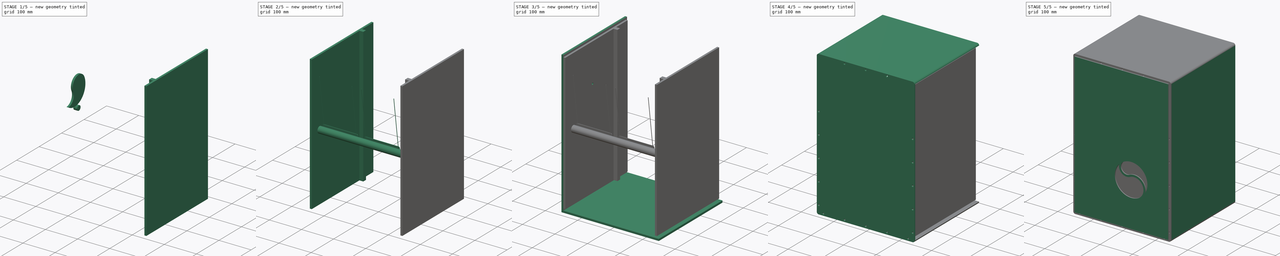
[diagram: build sequence overview — one tinted view per stage of 5, left to right]
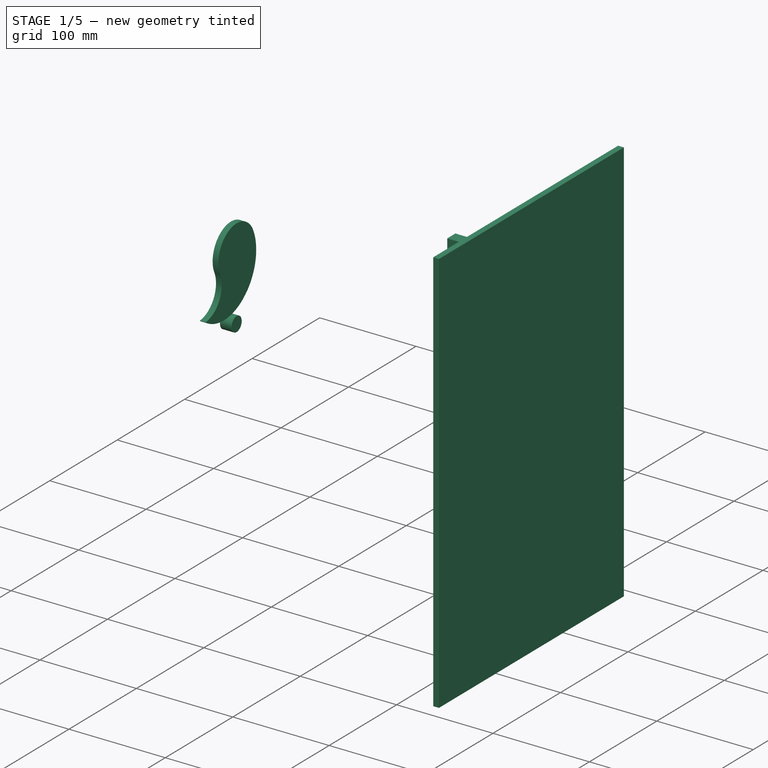
[diagram: stage 1 of 5 — iso view after this stage's code; geometry added in this stage tinted green]
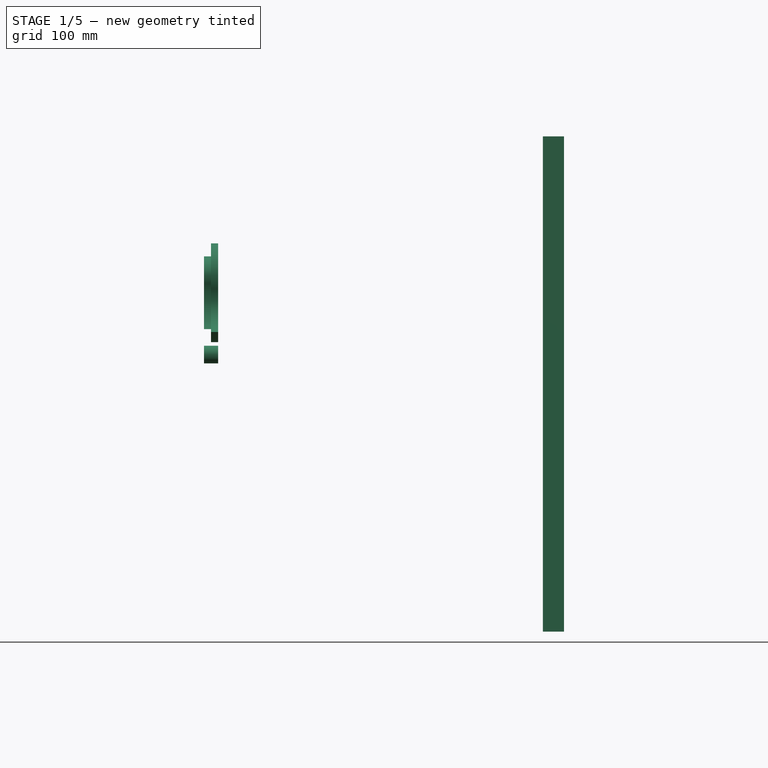
[diagram: stage 1 of 5 — front view after this stage's code; geometry added in this stage tinted green]
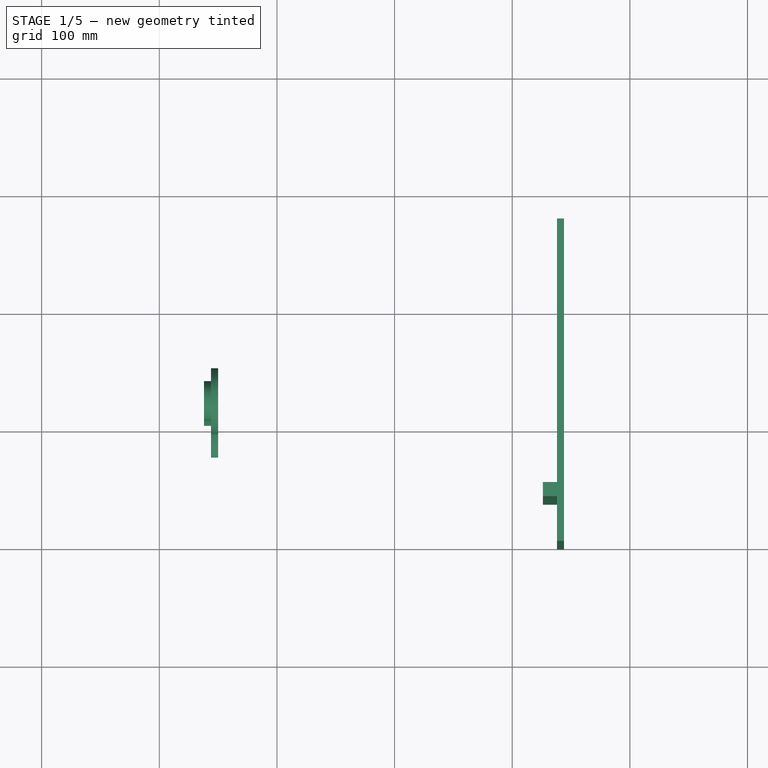
[diagram: stage 1 of 5 — top view after this stage's code; geometry added in this stage tinted green]
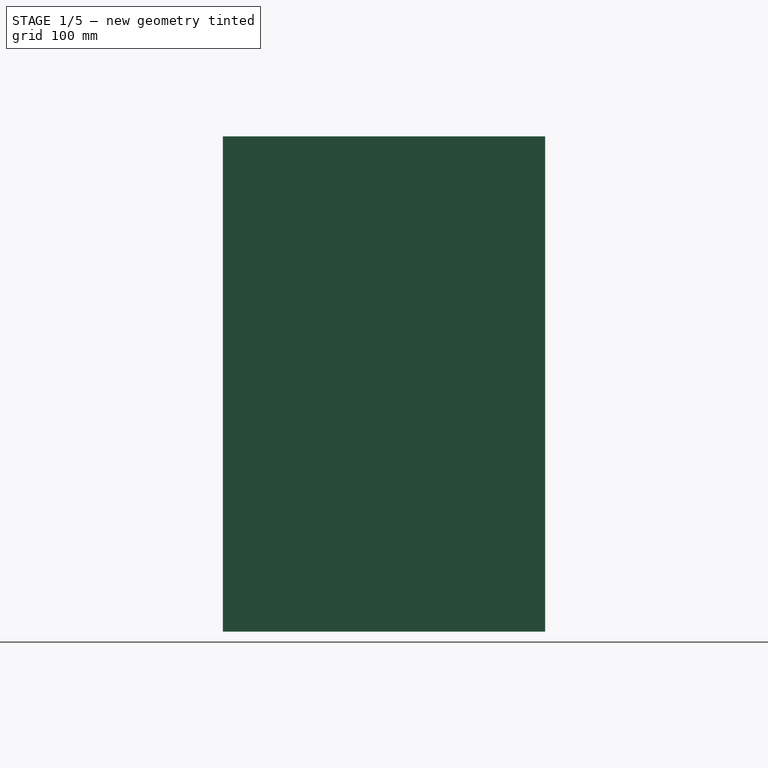
[diagram: stage 1 of 5 — right view after this stage's code; geometry added in this stage tinted green]
FCSTD DOCUMENT  (FreeCAD 0.19R24366 (Git))
Label: cajon
Comment: s
License: All rights reserved
LicenseURL: http://en.wikipedia.org/wiki/All_rights_reserved
objects: Sketcher::SketchObject×26, PartDesign::Pad×19, PartDesign::ShapeBinder×16, PartDesign::Body×16, App::Part×4, App::DocumentObjectGroup×4, PartDesign::Hole×3, PartDesign::Fillet×3, Spreadsheet::Sheet×2, PartDesign::Pocket×2
note: 112 computed .brp shape members not serialized (recipe doc carries the construction recipe); baked Part::Feature solids carry a one-line shape summary decoded from their .brp

FEATURE [PartDesign::ShapeBinder] ShapeBinder002  label="inner right profile binder"
  Support = -> [Sketch009]
  TraceSupport = false
FEATURE [Sketcher::SketchObject] Sketch011  label="inner right profile"
  ExternalGeometry = -> [ShapeBinder002]
  FullyConstrained = true
  MapMode = 5
  Placement = pos=(0,0,0) rot=(1,0,0;1.5708rad)
  Support = -> [XZ_Plane003]
  sketch-geometry (4):
    g0: LineSegment StartX=138 StartY=210.5 StartZ=0 EndX=144 EndY=210.5 EndZ=0
    g1: LineSegment StartX=144 StartY=210.5 StartZ=0 EndX=144 EndY=-210.5 EndZ=0
    g2: LineSegment StartX=144 StartY=-210.5 StartZ=0 EndX=138 EndY=-210.5 EndZ=0
    g3: LineSegment StartX=138 StartY=-210.5 StartZ=0 EndX=138 EndY=210.5 EndZ=0
  constraints (9):
    c: Coincident(g0,g1)
    c: Coincident(g1,g2)
    c: Coincident(g2,g3)
    c: Coincident(g3,g0)
    c: Horizontal(g2)
    c: Vertical(g3)
    c: Coincident(g-3,g0)
    c: Coincident(g-4,g0)
    c: Coincident(g-3,g1)
FEATURE [PartDesign::Pad] Pad002  label="inner right pad"
  Direction = (1,1,1)
  Length = 274
  Length2 = 100
  Placement = pos=(0,0,0) rot=(1,0,0;1.5708rad)
  Profile = -> Sketch011
  Reversed = true
  Type = 0
  expr: Length = <<common>>.BoxDepth - <<common>>.PlywoodBoardThickness
FEATURE [PartDesign::Body] Body010  label="snare cam"
  Group = -> [ShapeBinder010,Sketch022,Pad010]
  Origin = -> Origin014
  Placement = pos=(12,0,0) rot=(0,0,1;0rad)
  Tip = -> Pad010
  expr: .Placement.Base.x = <<common>>.PlywoodBoardThickness * 2
FEATURE [PartDesign::ShapeBinder] ShapeBinder011  label="snare knob binder"
  Placement = pos=(-150,140,3.9e-14) rot=(0.57735,-0.57735,-0.57735;2.0944rad)
  Support = -> [Sketch021]
  TraceSupport = false
FEATURE [Sketcher::SketchObject] Sketch023  label="snare knob profile"
  ExternalGeometry = -> [ShapeBinder011]
  FullyConstrained = true
  MapMode = 2
  Placement = pos=(-150,140,3.9e-14) rot=(0.57735,-0.57735,-0.57735;2.0944rad)
  Support = -> [ShapeBinder011]
  expr: Constraints[2] = (<<snare common>>.KnobCamAngle + 180) % 360
  sketch-geometry (7):
    g0: LineSegment StartX=-66.6025 StartY=42.5 StartZ=0 EndX=20 EndY=92.5 EndZ=0
    g1: LineSegment StartX=0 StartY=92.5 StartZ=0 EndX=20 EndY=92.5 EndZ=0
    g2: ArcOfCircle CenterX=20 CenterY=92.5 CenterZ=0 NormalX=0 NormalY=0 NormalZ=1 AngleXU=0 Radius=27 StartAngle=5.84685 EndAngle=8.98845
    g3: ArcOfCircle CenterX=39.0325 CenterY=83.625 CenterZ=0 NormalX=0 NormalY=0 NormalZ=1 AngleXU=0 Radius=48 StartAngle=2.70526 EndAngle=5.31779
    g4: ArcOfCircle CenterX=68.0343 CenterY=70.1012 CenterZ=0 NormalX=0 NormalY=0 NormalZ=1 AngleXU=0 Radius=26 StartAngle=2.70526 EndAngle=4.64752
    g5: LineSegment StartX=-4.47031 StartY=103.911 StartZ=0 EndX=82.5352 EndY=63.3393 EndZ=0
    g6: ArcOfCircle CenterX=68.0343 CenterY=70.1012 CenterZ=0 NormalX=0 NormalY=0 NormalZ=1 AngleXU=0 Radius=18 StartAngle=2.70526 EndAngle=5.84685
  constraints (24):
    c: PointOnObject(g1,g-2)
    c: Perpendicular(g1,g-2)
    c: Angle(g0,g1) = 5.75959
    c: Coincident(g3,g2)
    c: Coincident(g2,g4)
    c: Coincident(g5,g2)
    c: PointOnObject(g4,g5)
    c: PointOnObject(g2,g5)
    c: PointOnObject(g2,g5)
    c: Diameter(g2) = 54
    c: Diameter(g4) = 52
    c: Coincident(g1,g0)
    c: Coincident(g-3,g0)
    c: Coincident(g0,g2)
    c: Coincident(g4,g3)
    c: Distance(g5) = 96
    c: Symmetric(g5,g5,g3)
    c: Distance(g2,g6) = 8
    c: Coincident(g6,g4)
    c: Diameter(g6) = 36
    c: PointOnObject(g6,g5)
    c: PointOnObject(g6,g5)
    c: Angle(g0,g5) = 2.18166
    c: Distance(g0) = 100
FEATURE [PartDesign::Pad] Pad011  label="snare knob pad"
  Direction = (1,1,1)
  Length = 6
  Length2 = 100
  Placement = pos=(-150,140,3.9e-14) rot=(0.57735,-0.57735,-0.57735;2.0944rad)
  Profile = -> Sketch023
  Type = 0
  expr: Length = <<common>>.PlywoodBoardThickness
FEATURE [PartDesign::Body] Body012  label="snare follower"
  Group = -> [ShapeBinder014,Sketch024,Pad013,Sketch030,Pocket001]
  Origin = -> Origin016
  Placement = pos=(12,0,0) rot=(0,0,1;0rad)
  Tip = -> Pocket001
  expr: .Placement.Base.x = <<common>>.PlywoodBoardThickness * 2
FEATURE [PartDesign::ShapeBinder] ShapeBinder016  label="snare cam stopper binder"
  Placement = pos=(-150,140,3.9e-14) rot=(0.57735,-0.57735,-0.57735;2.0944rad)
  Support = -> [Sketch021]
  TraceSupport = false
FEATURE [Sketcher::SketchObject] Sketch031  label="snare cam stopper profile"
  ExternalGeometry = -> [ShapeBinder016]
  FullyConstrained = true
  MapMode = 2
  Placement = pos=(-150,140,3.9e-14) rot=(0.57735,-0.57735,-0.57735;2.0944rad)
  Support = -> [ShapeBinder016]
  sketch-geometry (1):
    g0: Circle CenterX=20 CenterY=25 CenterZ=0 NormalX=0 NormalY=0 NormalZ=1 AngleXU=0 Radius=7.5
  constraints (2):
    c: Coincident(g-3,g0)
    c: Equal(g-3,g0)
FEATURE [PartDesign::Pad] Pad017  label="snare cam stopper pad"
  Direction = (1,1,1)
  Length = 12
  Length2 = 100
  Placement = pos=(-150,140,3.9e-14) rot=(0.57735,-0.57735,-0.57735;2.0944rad)
  Profile = -> Sketch031
  Type = 0
  expr: Length = <<common>>.PlywoodBoardThickness * 2
FEATURE [PartDesign::Body] Body015  label="snare cam stopper"
  Group = -> [ShapeBinder016,Sketch031,Pad017]
  Origin = -> Origin019
  Placement = pos=(24,0,0) rot=(0,0,1;0rad)
  Tip = -> Pad017
  expr: .Placement.Base.x = <<common>>.PlywoodBoardThickness * 4
FEATURE [Sketcher::SketchObject] Sketch032  label="snare knob inner profile"
  ExternalGeometry = -> [Pad011]
  FullyConstrained = true
  MapMode = 5
  Placement = pos=(-156,140,3.9e-14) rot=(0.57735,-0.57735,-0.57735;2.0944rad)
  Support = -> [Pad011]
  sketch-geometry (3):
    g0: ArcOfCircle CenterX=20 CenterY=92.5 CenterZ=0 NormalX=0 NormalY=0 NormalZ=1 AngleXU=0 Radius=16 StartAngle=5.84685 EndAngle=8.98845
    g1: ArcOfCircle CenterX=39.0325 CenterY=83.625 CenterZ=0 NormalX=0 NormalY=0 NormalZ=1 AngleXU=0 Radius=37 StartAngle=2.70526 EndAngle=6.97046
    g2: ArcOfCircle CenterX=68.0343 CenterY=70.1012 CenterZ=0 NormalX=0 NormalY=0 NormalZ=1 AngleXU=0 Radius=37 StartAngle=2.70526 EndAngle=7.86484
  constraints (9):
    c: Coincident(g0,g-4)
    c: Coincident(g1,g-3)
    c: Coincident(g1,g0)
    c: Diameter(g0) = 32
    c: Coincident(g2,g-5)
    c: Coincident(g2,g1)
    c: Coincident(g2,g0)
    c: Angle(g1,g0,g0) = 0
    c: Angle(g2,g0,g0) = 3.14159
FEATURE [PartDesign::Pad] Pad018  label="snare knob inner pad"
  BaseFeature = -> Pad011
  Direction = (1,1,1)
  Length = 6
  Length2 = 100
  Placement = pos=(-150,140,3.9e-14) rot=(0.57735,-0.57735,-0.57735;2.0944rad)
  Profile = -> Sketch032
  Type = 0
  expr: Length = <<common>>.PlywoodBoardThickness
FEATURE [PartDesign::Body] Body011  label="snare knob"
  Group = -> [ShapeBinder011,Sketch023,Pad011,Sketch032,Pad018]
  Origin = -> Origin015
  Tip = -> Pad018
FEATURE [App::Part] Part003  label="snare"
  Group = -> [Sketch021,Body010,Body011,Spreadsheet001,Body012,Body013,Body014,Body015]
  Origin = -> Origin013
FEATURE [Sketcher::SketchObject] Sketch033  label="inner right brace profile"
  FullyConstrained = true
  MapMode = 5
  Placement = pos=(138,0,0) rot=(0.707107,0,-0.707107;3.14159rad)
  Support = -> [Pad002]
  expr: Constraints[7] = <<common>>.PlywoodBoardThickness * 2
  expr: Constraints[8] = <<common>>.BoxHeight - <<common>>.PlywoodBoardThickness * 4
  sketch-geometry (4):
    g0: LineSegment StartX=-210.5 StartY=-38 StartZ=0 EndX=210.5 EndY=-38 EndZ=0
    g1: LineSegment StartX=210.5 StartY=-38 StartZ=0 EndX=210.5 EndY=-50 EndZ=0
    g2: LineSegment StartX=210.5 StartY=-50 StartZ=0 EndX=-210.5 EndY=-50 EndZ=0
    g3: LineSegment StartX=-210.5 StartY=-50 StartZ=0 EndX=-210.5 EndY=-38 EndZ=0
  constraints (11):
    c: Coincident(g0,g1)
    c: Coincident(g1,g2)
    c: Coincident(g2,g3)
    c: Coincident(g3,g0)
    c: Horizontal(g2)
    c: Vertical(g1)
    c: Vertical(g3)
    c: DistanceY(g1,g1) = 12
    c: DistanceX(g0,g0) = 421
    c: Symmetric(g0,g0,g-2)
    c: DistanceY(g2) = -50
FEATURE [PartDesign::Pad] Pad019  label="inner right brace pad"
  BaseFeature = -> Pad002
  Direction = (1,1,1)
  Length = 12
  Length2 = 100
  Placement = pos=(0,0,0) rot=(1,0,0;1.5708rad)
  Profile = -> Sketch033
  Type = 0
  expr: Length = <<common>>.PlywoodBoardThickness * 2
FEATURE [PartDesign::Body] Body002  label="inner right"
  Group = -> [ShapeBinder002,Sketch011,Pad002,Sketch033,Pad019]
  Origin = -> Origin003
  Tip = -> Pad019
FEATURE [App::DocumentObjectGroup] Group002  label="right"
  Group = -> [Body,Body002]
FEATURE [App::Part] Part  label="box"
  Group = -> [Sketch009,Group,Body004,Body005,Body006,Body007,Body,Body002,Body001,Body003,Group001,Group002,Group003]
  Origin = -> Origin
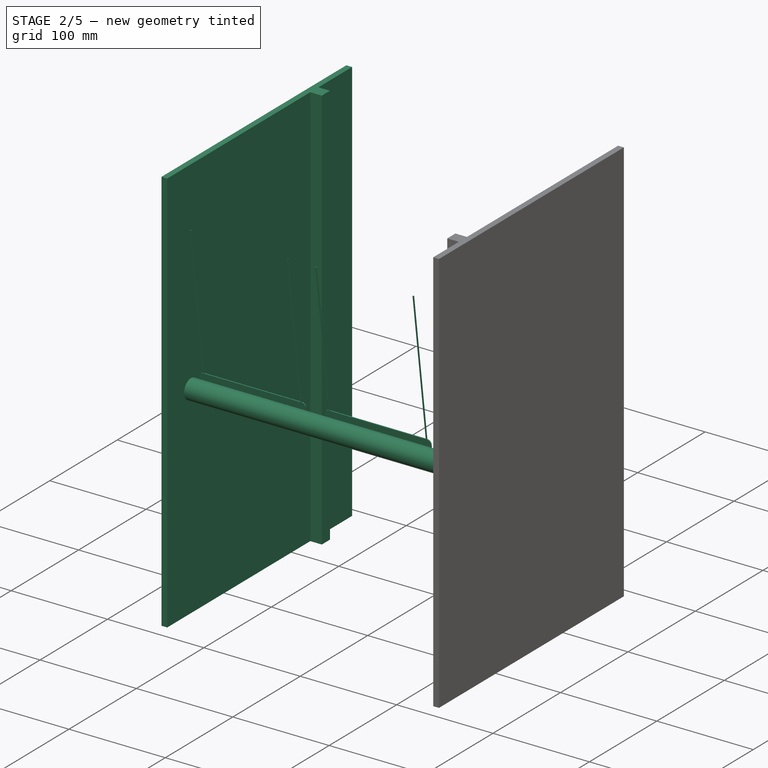
[diagram: stage 2 of 5 — iso view after this stage's code; geometry added in this stage tinted green]
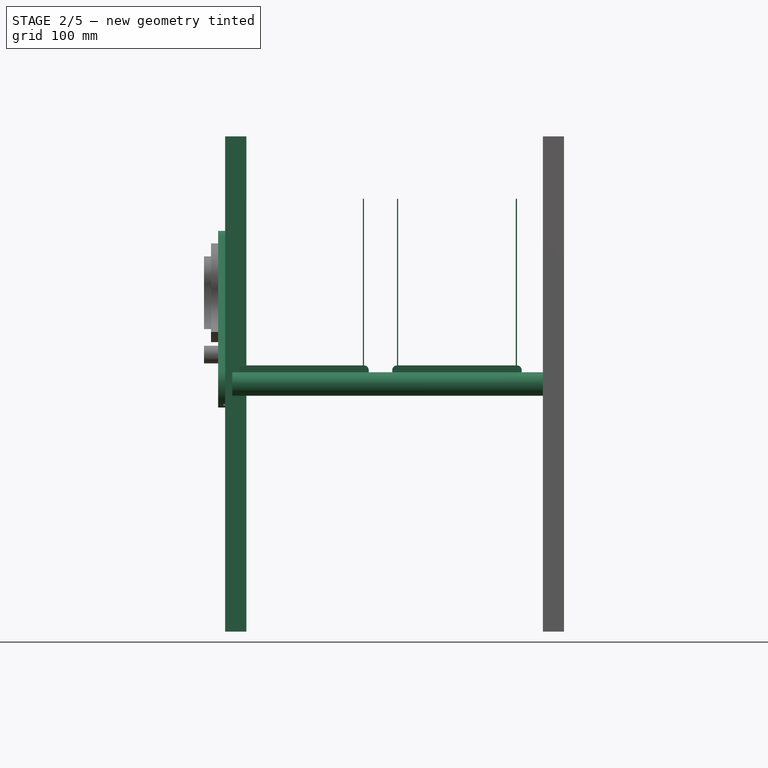
[diagram: stage 2 of 5 — front view after this stage's code; geometry added in this stage tinted green]
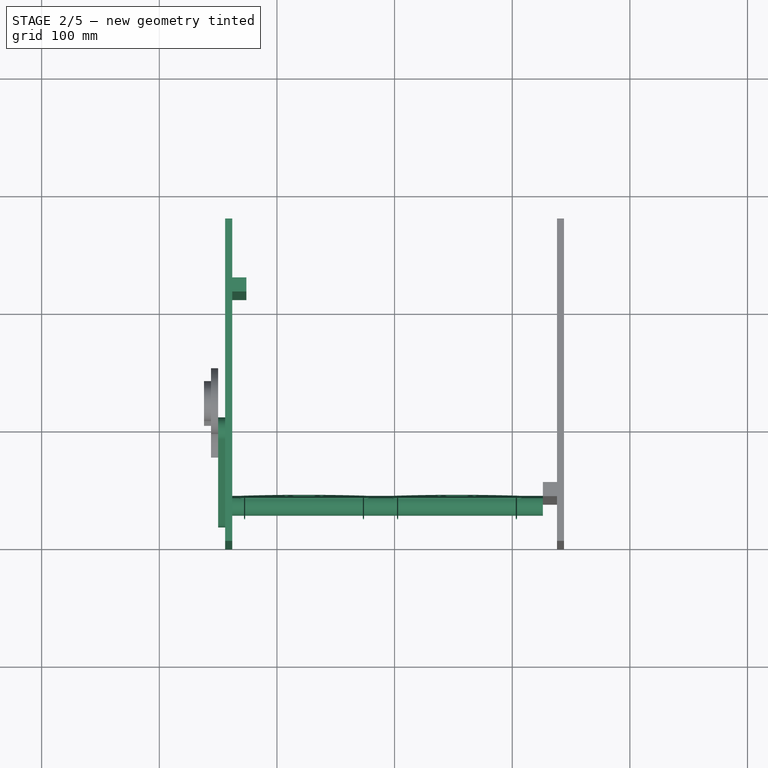
[diagram: stage 2 of 5 — top view after this stage's code; geometry added in this stage tinted green]
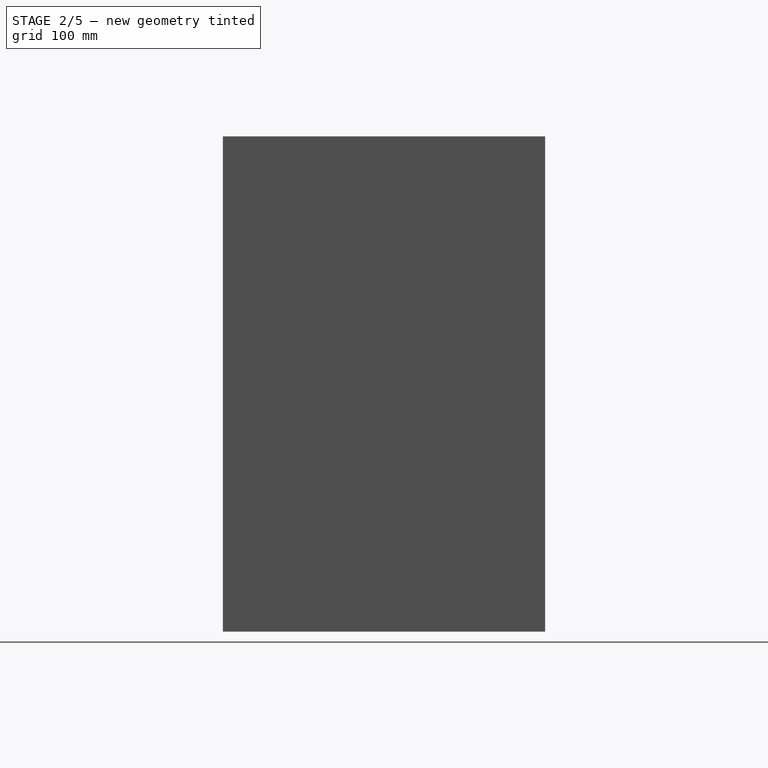
[diagram: stage 2 of 5 — right view after this stage's code; geometry added in this stage tinted green]
FEATURE [PartDesign::ShapeBinder] ShapeBinder003  label="inner left profile binder"
  Support = -> [Sketch009]
  TraceSupport = false
FEATURE [Sketcher::SketchObject] Sketch012  label="inner left profile"
  ExternalGeometry = -> [ShapeBinder003]
  FullyConstrained = true
  MapMode = 5
  Placement = pos=(0,0,0) rot=(1,0,0;1.5708rad)
  Support = -> [XZ_Plane004]
  sketch-geometry (4):
    g0: LineSegment StartX=-144 StartY=210.5 StartZ=0 EndX=-138 EndY=210.5 EndZ=0
    g1: LineSegment StartX=-138 StartY=210.5 StartZ=0 EndX=-138 EndY=-210.5 EndZ=0
    g2: LineSegment StartX=-138 StartY=-210.5 StartZ=0 EndX=-144 EndY=-210.5 EndZ=0
    g3: LineSegment StartX=-144 StartY=-210.5 StartZ=0 EndX=-144 EndY=210.5 EndZ=0
  constraints (9):
    c: Coincident(g0,g1)
    c: Coincident(g1,g2)
    c: Coincident(g2,g3)
    c: Coincident(g3,g0)
    c: Horizontal(g0)
    c: Vertical(g1)
    c: Coincident(g-5,g2)
    c: Coincident(g-4,g1)
    c: Coincident(g-3,g0)
FEATURE [PartDesign::Pad] Pad003  label="inner left pad"
  Direction = (1,1,1)
  Length = 274
  Length2 = 100
  Placement = pos=(0,0,0) rot=(1,0,0;1.5708rad)
  Profile = -> Sketch012
  Reversed = true
  Type = 0
  expr: Length = <<common>>.BoxDepth - <<common>>.PlywoodBoardThickness
FEATURE [Spreadsheet::Sheet] Spreadsheet001  label="snare common"
  cells = A1=KnobCamAngle; B1(KnobCamAngle)=150
FEATURE [PartDesign::ShapeBinder] ShapeBinder013  label="snare shaft binder"
  Placement = pos=(-150,140,3.9e-14) rot=(0.57735,-0.57735,-0.57735;2.0944rad)
  Support = -> [Sketch021]
  TraceSupport = false
FEATURE [Sketcher::SketchObject] Sketch025  label="snare shaft profile"
  ExternalGeometry = -> [ShapeBinder013]
  FullyConstrained = true
  MapMode = 2
  Placement = pos=(-150,140,3.9e-14) rot=(0.57735,-0.57735,-0.57735;2.0944rad)
  Support = -> [ShapeBinder013]
  sketch-geometry (2):
    g0: LineSegment StartX=100.153 StartY=8.74683 StartZ=0 EndX=97.9602 EndY=-7.10219 EndZ=0
    g1: ArcOfCircle CenterX=105 CenterY=-1.34e-14 CenterZ=0 NormalX=0 NormalY=0 NormalZ=1 AngleXU=0 Radius=10 StartAngle=3.9314 EndAngle=8.36
  constraints (5):
    c: Coincident(g-4,g0)
    c: Coincident(g-4,g0)
    c: Coincident(g0,g1)
    c: Coincident(g0,g1)
    c: Tangent(g-3,g1)
FEATURE [PartDesign::Pad] Pad012  label="snare shaft pad"
  Direction = (1,1,1)
  Length = 276
  Length2 = 100
  Placement = pos=(-150,140,3.9e-14) rot=(0.57735,-0.57735,-0.57735;2.0944rad)
  Profile = -> Sketch025
  Reversed = true
  Type = 0
  expr: Length = <<common>>.BoxWidth - <<common>>.PlywoodBoardThickness * 4
FEATURE [PartDesign::Body] Body013  label="snare shaft"
  Group = -> [ShapeBinder013,Sketch025,Pad012]
  Origin = -> Origin017
  Placement = pos=(12,0,0) rot=(0,0,1;0rad)
  Tip = -> Pad012
  expr: .Placement.Base.x = <<common>>.PlywoodBoardThickness * 2
FEATURE [PartDesign::ShapeBinder] ShapeBinder014  label="snare follower binder"
  Placement = pos=(-150,140,3.9e-14) rot=(0.57735,-0.57735,-0.57735;2.0944rad)
  Support = -> [Sketch021]
  TraceSupport = false
FEATURE [Sketcher::SketchObject] Sketch024  label="snare follower profile"
  ExternalGeometry = -> [ShapeBinder014]
  FullyConstrained = true
  MapMode = 2
  Placement = pos=(-150,140,3.9e-14) rot=(0.57735,-0.57735,-0.57735;2.0944rad)
  Support = -> [ShapeBinder014]
  sketch-geometry (6):
    g0: ArcOfCircle CenterX=43.454 CenterY=120.154 CenterZ=0 NormalX=0 NormalY=0 NormalZ=1 AngleXU=0 Radius=10 StartAngle=0.547521 EndAngle=3.54083
    g1: ArcOfCircle CenterX=105 CenterY=2.5e-15 CenterZ=0 NormalX=0 NormalY=0 NormalZ=1 AngleXU=0 Radius=20 StartAngle=3.54083 EndAngle=6.83071
    g2: LineSegment StartX=51.9922 StartY=125.36 StartZ=0 EndX=122.076 EndY=10.4114 EndZ=0
    g3: LineSegment StartX=34.2404 StartY=116.267 StartZ=0 EndX=86.5728 EndY=-7.77431 EndZ=0
    g4: ArcOfCircle CenterX=105 CenterY=-3.4e-15 CenterZ=0 NormalX=0 NormalY=0 NormalZ=1 AngleXU=0 Radius=10 StartAngle=3.9314 EndAngle=8.36
    g5: LineSegment StartX=100.153 StartY=8.74683 StartZ=0 EndX=97.9602 EndY=-7.10219 EndZ=0
  constraints (14):
    c: Coincident(g-5,g0)
    c: Tangent(g-5,g0) = -1.5708
    c: Coincident(g0,g2)
    c: Coincident(g0,g3)
    c: Coincident(g-6,g2)
    c: Coincident(g-6,g3)
    c: Coincident(g2,g1)
    c: Coincident(g3,g1)
    c: Tangent(g-6,g1)
    c: Coincident(g-8,g5)
    c: Coincident(g-8,g5)
    c: Coincident(g5,g4)
    c: Coincident(g5,g4)
    c: Tangent(g-8,g4)
FEATURE [PartDesign::Pad] Pad013  label="snare follower pad"
  Direction = (1,1,1)
  Length = 12
  Length2 = 100
  Placement = pos=(-150,140,3.9e-14) rot=(0.57735,-0.57735,-0.57735;2.0944rad)
  Profile = -> Sketch024
  Reversed = true
  Type = 0
  expr: Length = <<common>>.PlywoodBoardThickness * 2
FEATURE [Sketcher::SketchObject] Sketch026  label="snare wires area"
  AttachmentOffset = pos=(0,0,0) rot=(0,0,1;1.5708rad)
  FullyConstrained = false
  MapMode = 45
  Placement = pos=(-12,40.9434,0.822322) rot=(1,0,0;1.70828rad)
  Support = -> [Pad012]
  sketch-geometry (64):
    g0: LineSegment StartX=-116 StartY=158 StartZ=0 EndX=-115 EndY=158 EndZ=0
    g1: LineSegment StartX=-115 StartY=158 StartZ=0 EndX=-115 EndY=15 EndZ=0
    g2: LineSegment StartX=-115 StartY=15 StartZ=0 EndX=-116 EndY=15 EndZ=0
    g3: LineSegment StartX=-116 StartY=15 StartZ=0 EndX=-116 EndY=158 EndZ=0
    g4: LineSegment StartX=-120 StartY=158 StartZ=0 EndX=120 EndY=158 EndZ=0
    g5: LineSegment StartX=120 StartY=158 StartZ=0 EndX=120 EndY=-7 EndZ=0
    g6: LineSegment StartX=120 StartY=-7 StartZ=0 EndX=-120 EndY=-7 EndZ=0
    g7: LineSegment StartX=-120 StartY=-7 StartZ=0 EndX=-120 EndY=158 EndZ=0
    g8: LineSegment StartX=-10 StartY=158 StartZ=0 EndX=-10 EndY=-7 EndZ=0
    g9: LineSegment StartX=10 StartY=158 StartZ=0 EndX=10 EndY=-7 EndZ=0
    g10: LineSegment StartX=-120 StartY=15 StartZ=0 EndX=120 EndY=15 EndZ=0
    g11: LineSegment StartX=-116 StartY=15 StartZ=0 EndX=-14 EndY=15 EndZ=0
    g12: LineSegment StartX=-120 StartY=11 StartZ=0 EndX=-120 EndY=4 EndZ=0
    g13: LineSegment StartX=-10 StartY=11 StartZ=0 EndX=-10 EndY=4 EndZ=0
    g14: ArcOfCircle CenterX=-65 CenterY=208 CenterZ=0 NormalX=0 NormalY=0 NormalZ=1 AngleXU=0 Radius=215 StartAngle=4.4718 EndAngle=4.95298
    g15: GeomPoint X=-70.0919 Y=-17.2963 Z=0
    g16: ArcOfCircle CenterX=-115.05 CenterY=4 CenterZ=0 NormalX=0 NormalY=0 NormalZ=1 AngleXU=0 Radius=4.95 StartAngle=3.14159 EndAngle=4.4718
    g17: GeomPoint X=-120 Y=0 Z=0
    g18: ArcOfCircle CenterX=-14.95 CenterY=4 CenterZ=0 NormalX=0 NormalY=0 NormalZ=1 AngleXU=0 Radius=4.95 StartAngle=4.95298 EndAngle=6.28319
    g19: GeomPoint X=-10 Y=0 Z=0
    g20: ArcOfCircle CenterX=-14 CenterY=11 CenterZ=0 NormalX=0 NormalY=0 NormalZ=1 AngleXU=0 Radius=4 StartAngle=0 EndAngle=1.5708
    g21: GeomPoint X=-10 Y=15 Z=0
    g22: ArcOfCircle CenterX=-116 CenterY=11 CenterZ=0 NormalX=0 NormalY=0 NormalZ=1 AngleXU=0 Radius=4 StartAngle=1.5708 EndAngle=3.14159
    g23: GeomPoint X=-120 Y=15 Z=0
    g24: LineSegment StartX=-120 StartY=4 StartZ=0 EndX=120 EndY=4 EndZ=0
    g25: LineSegment StartX=120 StartY=11 StartZ=0 EndX=-120 EndY=11 EndZ=0
    g26: ArcOfCircle CenterX=-73 CenterY=0 CenterZ=0 NormalX=0 NormalY=0 NormalZ=1 AngleXU=0 Radius=2 StartAngle=1.5708 EndAngle=4.71239
    g27: ArcOfCircle CenterX=-57 CenterY=1e-16 CenterZ=0 NormalX=0 NormalY=0 NormalZ=1 AngleXU=0 Radius=2 StartAngle=4.71239 EndAngle=7.85398
    g28: LineSegment StartX=-73 StartY=-2 StartZ=0 EndX=-57 EndY=-2 EndZ=0
    g29: LineSegment StartX=-73 StartY=2 StartZ=0 EndX=-57 EndY=2 EndZ=0
    g30: LineSegment StartX=-65 StartY=15 StartZ=0 EndX=-65 EndY=-7 EndZ=0
    g31: Circle CenterX=-80 CenterY=0 CenterZ=0 NormalX=0 NormalY=0 NormalZ=1 AngleXU=0 Radius=2
    g32: Circle CenterX=-50 CenterY=0 CenterZ=0 NormalX=0 NormalY=0 NormalZ=1 AngleXU=0 Radius=2
    g33: LineSegment StartX=65 StartY=15 StartZ=0 EndX=65 EndY=-7 EndZ=0
    g34: LineSegment StartX=14 StartY=15 StartZ=0 EndX=116 EndY=15 EndZ=0
    g35: LineSegment StartX=10 StartY=11 StartZ=0 EndX=10 EndY=4 EndZ=0
    g36: LineSegment StartX=120 StartY=11 StartZ=0 EndX=120 EndY=4 EndZ=0
    g37: ArcOfCircle CenterX=65 CenterY=208 CenterZ=0 NormalX=0 NormalY=0 NormalZ=1 AngleXU=0 Radius=215 StartAngle=4.4718 EndAngle=4.95298
    g38: ArcOfCircle CenterX=14.95 CenterY=4 CenterZ=0 NormalX=0 NormalY=0 NormalZ=1 AngleXU=0 Radius=4.95 StartAngle=3.14159 EndAngle=4.4718
    g39: GeomPoint X=10 Y=-63.7253 Z=0
    g40: ArcOfCircle CenterX=115.05 CenterY=4 CenterZ=0 NormalX=0 NormalY=0 NormalZ=1 AngleXU=0 Radius=4.95 StartAngle=4.95298 EndAngle=6.28319
    g41: GeomPoint X=120 Y=-63.7253 Z=0
    g42: ArcOfCircle CenterX=116 CenterY=11 CenterZ=0 NormalX=0 NormalY=0 NormalZ=1 AngleXU=0 Radius=4 StartAngle=0 EndAngle=1.5708
    g43: GeomPoint X=120 Y=15 Z=0
    g44: ArcOfCircle CenterX=14 CenterY=11 CenterZ=0 NormalX=0 NormalY=0 NormalZ=1 AngleXU=0 Radius=4 StartAngle=1.5708 EndAngle=3.14159
    g45: GeomPoint X=10 Y=15 Z=0
    g46: ArcOfCircle CenterX=57 CenterY=-1e-16 CenterZ=0 NormalX=0 NormalY=0 NormalZ=1 AngleXU=0 Radius=2 StartAngle=1.5708 EndAngle=4.71239
    g47: ArcOfCircle CenterX=73 CenterY=-1e-15 CenterZ=0 NormalX=0 NormalY=0 NormalZ=1 AngleXU=0 Radius=2 StartAngle=4.71239 EndAngle=7.85398
    g48: LineSegment StartX=57 StartY=-2 StartZ=0 EndX=73 EndY=-2 EndZ=0
    g49: LineSegment StartX=57 StartY=2 StartZ=0 EndX=73 EndY=2 EndZ=0
    g50: Circle CenterX=50 CenterY=1.7e-15 CenterZ=0 NormalX=0 NormalY=0 NormalZ=1 AngleXU=0 Radius=2
    g51: Circle CenterX=80 CenterY=0 CenterZ=0 NormalX=0 NormalY=0 NormalZ=1 AngleXU=0 Radius=2
    g52: LineSegment StartX=-15 StartY=158 StartZ=0 EndX=-14 EndY=158 EndZ=0
    g53: LineSegment StartX=-14 StartY=158 StartZ=0 EndX=-14 EndY=15 EndZ=0
    g54: LineSegment StartX=-14 StartY=15 StartZ=0 EndX=-15 EndY=15 EndZ=0
    g55: LineSegment StartX=-15 StartY=15 StartZ=0 EndX=-15 EndY=158 EndZ=0
    g56: LineSegment StartX=116 StartY=158 StartZ=0 EndX=115 EndY=158 EndZ=0
    g57: LineSegment StartX=115 StartY=158 StartZ=0 EndX=115 EndY=15 EndZ=0
    g58: LineSegment StartX=115 StartY=15 StartZ=0 EndX=116 EndY=15 EndZ=0
    g59: LineSegment StartX=116 StartY=15 StartZ=0 EndX=116 EndY=158 EndZ=0
    g60: LineSegment StartX=14 StartY=158 StartZ=0 EndX=15 EndY=158 EndZ=0
    g61: LineSegment StartX=15 StartY=158 StartZ=0 EndX=15 EndY=15 EndZ=0
    g62: LineSegment StartX=15 StartY=15 StartZ=0 EndX=14 EndY=15 EndZ=0
    g63: LineSegment StartX=14 StartY=15 StartZ=0 EndX=14 EndY=158 EndZ=0
  constraints (163):
    c: Coincident(g0,g1)
    c: Coincident(g1,g2)
    c: Coincident(g2,g3)
    c: Coincident(g3,g0)
    c: Horizontal(g0)
    c: Horizontal(g2)
    c: Vertical(g1)
    c: Vertical(g3)
    c: DistanceX(g2,g2) = 1
    c: Coincident(g4,g5)
    c: Coincident(g5,g6)
    c: Coincident(g6,g7)
    c: Coincident(g7,g4)
    c: Horizontal(g4)
    c: Vertical(g5)
    c: Vertical(g7)
    c: Symmetric(g5,g6,g-2)
    c: Vertical(g8)
    c: Vertical(g9)
    c: PointOnObject(g9,g4)
    c: PointOnObject(g8,g4)
    c: PointOnObject(g9,g6)
    c: Symmetric(g9,g8,g-2)
    c: DistanceX(g9,g5) = 110  'SnareWireWidth'
    c: DistanceY(g5,g5) = 165  'SnareWireHeight'
    c: Horizontal(g10)
    c: PointOnObject(g10,g5)
    c: PointOnObject(g10,g7)
    c: DistanceX(g8,g9) = 20
    c: DistanceY(g5,g10) = 22
    c: DistanceY(g5) = -7
    c: Tangent(g10,g11)
    c: PointOnObject(g21,g8)
    c: PointOnObject(g23,g7)
    c: PointOnObject(g17,g-1)
    c: PointOnObject(g19,g-1)
    c: Vertical(g12)
    c: Vertical(g13)
    c: Tangent(g6,g14)
    c: PointOnObject(g17,g12)
    c: Tangent(g12,g16) = -1.5708
    c: PointOnObject(g19,g13)
    c: Tangent(g13,g18) = 1.5708
    c: PointOnObject(g21,g13)
    c: PointOnObject(g21,g11)
    c: Tangent(g13,g20) = 1.5708
    c: Tangent(g11,g20) = 1.5708
    c: PointOnObject(g23,g11)
    c: PointOnObject(g23,g12)
    c: Tangent(g11,g22) = 1.5708
    c: Tangent(g12,g22) = -1.5708
    c: Horizontal(g24)
    c: Horizontal(g25)
    c: PointOnObject(g25,g7)
    c: PointOnObject(g25,g5)
    c: PointOnObject(g24,g5)
    c: DistanceY(g25,g10) = 4
    c: DistanceY(g24) = 4
    c: PointOnObject(g12,g25)
    c: PointOnObject(g13,g25)
    c: PointOnObject(g13,g24)
    c: Coincident(g18,g14)
    c: Angle(g18,g14,g14) = 0
    c: Coincident(g16,g14)
    c: Angle(g14,g16,g14) = 0
    c: Equal(g16,g18)
    c: Coincident(g24,g12)
    c: Tangent(g26,g29) = 1.5708
    c: Tangent(g26,g28) = -1.5708
    c: Tangent(g28,g27) = -1.5708
    c: Tangent(g29,g27) = 1.5708
    c: Horizontal(g28)
    c: PointOnObject(g26,g-1)
    c: Diameter(g26) = 4
    c: DistanceX(g29,g29) = 16
    c: PointOnObject(g30,g6)
    c: PointOnObject(g30,g10)
    c: Symmetric(g8,g6,g30)
    c: Symmetric(g26,g27,g30)
    c: PointOnObject(g32,g-1)
    c: Diameter(g31) = 4
    c: Diameter(g32) = 4
    c: Symmetric(g31,g32,g30)
    c: DistanceX(g31,g32) = 30
    c: PointOnObject(g0,g4)
    c: Coincident(g11,g2)
    c: PointOnObject(g33,g10)
    c: Symmetric(g5,g9,g33)
    c: Vertical(g35)
    c: Vertical(g36)
    c: PointOnObject(g39,g35)
    c: Tangent(g35,g38) = -1.5708
    c: PointOnObject(g41,g36)
    c: Tangent(g36,g40) = 1.5708
    c: PointOnObject(g43,g34)
    c: Tangent(g36,g42) = 1.5708
    c: Tangent(g34,g42) = 1.5708
    c: PointOnObject(g45,g34)
    c: PointOnObject(g45,g35)
    c: Tangent(g34,g44) = 1.5708
    c: Tangent(g35,g44) = -1.5708
    c: Coincident(g40,g37)
    c: Angle(g40,g37,g37) = 0
    c: Coincident(g38,g37)
    c: Angle(g37,g38,g37) = 0
    c: Equal(g38,g40)
    c: Equal(g16,g38) = 5
    c: Tangent(g46,g49) = 1.5708
    c: Tangent(g46,g48) = -1.5708
    c: Tangent(g48,g47) = -1.5708
    c: Tangent(g49,g47) = 1.5708
    c: Horizontal(g48)
    c: Equal(g26,g46) = 4
    c: Equal(g29,g49) = 16
    c: Equal(g31,g50) = 4
    c: Equal(g32,g51) = 4
    c: DistanceX(g50,g51) = 30
    c: Symmetric(g47,g46,g33)
    c: Symmetric(g46,g46,g-1)
    c: PointOnObject(g51,g-1)
    c: Symmetric(g51,g50,g33)
    c: Coincident(g10,g43)
    c: Coincident(g25,g36)
    c: PointOnObject(g45,g9)
    c: PointOnObject(g45,g10)
    c: PointOnObject(g35,g25)
    c: PointOnObject(g35,g24)
    c: PointOnObject(g36,g24)
    c: Tangent(g37,g6)
    c: Coincident(g52,g53)
    c: Coincident(g53,g54)
    c: Coincident(g54,g55)
    c: Coincident(g55,g52)
    c: Horizontal(g52)
    c: Horizontal(g54)
    c: Vertical(g53)
    c: Vertical(g55)
    c: DistanceX(g54,g54) = 1
    c: PointOnObject(g52,g4)
    c: Coincident(g11,g53)
    c: Coincident(g56,g57)
    c: Coincident(g57,g58)
    c: Coincident(g58,g59)
    c: Coincident(g59,g56)
    c: Horizontal(g56)
    c: Horizontal(g58)
    c: Vertical(g57)
    c: Vertical(g59)
    c: DistanceX(g58,g58) = 1
    c: Coincident(g34,g58)
    c: PointOnObject(g56,g4)
    c: Coincident(g60,g61)
    c: Coincident(g61,g62)
    c: Coincident(g62,g63)
    c: Coincident(g63,g60)
    c: Horizontal(g60)
    c: Horizontal(g62)
    c: Vertical(g61)
    c: Vertical(g63)
    c: DistanceX(g62,g62) = 1
    c: Coincident(g34,g62)
    c: PointOnObject(g60,g4)
    c: Radius(g14) = 215
FEATURE [PartDesign::ShapeBinder] ShapeBinder015  label="snare wires binder"
  Placement = pos=(-150,140,3.9e-14) rot=(0.57735,-0.57735,-0.57735;2.0944rad)
  Support = -> [Sketch021]
  TraceSupport = false
FEATURE [Sketcher::SketchObject] Sketch027  label="inner left brace profile"
  FullyConstrained = true
  MapMode = 5
  Placement = pos=(-138,0,0) rot=(0.707107,0,0.707107;3.14159rad)
  expr: Constraints[10] = (<<common>>.BoxDepth - <<common>>.PlywoodBoardThickness - 50) * -1
  expr: Constraints[9] = <<common>>.PlywoodBoardThickness * 2
  expr: Constraints[7] = <<common>>.BoxHeight - <<common>>.PlywoodBoardThickness * 4
  sketch-geometry (4):
    g0: LineSegment StartX=-210.5 StartY=-212 StartZ=0 EndX=210.5 EndY=-212 EndZ=0
    g1: LineSegment StartX=210.5 StartY=-212 StartZ=0 EndX=210.5 EndY=-224 EndZ=0
    g2: LineSegment StartX=210.5 StartY=-224 StartZ=0 EndX=-210.5 EndY=-224 EndZ=0
    g3: LineSegment StartX=-210.5 StartY=-224 StartZ=0 EndX=-210.5 EndY=-212 EndZ=0
  constraints (11):
    c: Coincident(g0,g1)
    c: Coincident(g1,g2)
    c: Coincident(g2,g3)
    c: Coincident(g3,g0)
    c: Horizontal(g2)
    c: Vertical(g1)
    c: Vertical(g3)
    c: DistanceX(g0,g0) = 421
    c: Symmetric(g0,g0,g-2)
    c: DistanceY(g3,g3) = 12
    c: DistanceY(g2) = -224
FEATURE [PartDesign::Pad] Pad015  label="inner left brace pad"
  BaseFeature = -> Pad003
  Direction = (1,1,1)
  Length = 12
  Length2 = 100
  Placement = pos=(0,0,0) rot=(1,0,0;1.5708rad)
  Profile = -> Sketch027
  Type = 0
  expr: Length = <<common>>.PlywoodBoardThickness * 2
FEATURE [PartDesign::Body] Body003  label="inner left"
  Group = -> [ShapeBinder003,Sketch012,ShapeBinder008,Pad003,Sketch027,Pad015,Sketch029,Hole003]
  Origin = -> Origin004
  Tip = -> Hole003
FEATURE [App::DocumentObjectGroup] Group003  label="left"
  Group = -> [Body001,Body003]
FEATURE [PartDesign::Pad] Pad016  label="snare wires pad"
  Direction = (1,1,1)
  Length = 1
  Length2 = 100
  Placement = pos=(-150,140,3.9e-14) rot=(0.57735,-0.57735,-0.57735;2.0944rad)
  Profile = -> Sketch026
  Reversed = true
  Type = 0
FEATURE [PartDesign::Body] Body014  label="snare wires"
  Group = -> [ShapeBinder015,Sketch026,Pad016]
  Origin = -> Origin018
  Placement = pos=(12,0,0) rot=(0,0,1;0rad)
  Tip = -> Pad016
  expr: .Placement.Base.x = <<common>>.PlywoodBoardThickness * 2
FEATURE [Sketcher::SketchObject] Sketch030  label="snare follower lock hole profile"
  FullyConstrained = true
  MapMode = 45
  Placement = pos=(-144,35.6754,1.31857) rot=(-1,0,0;0.473379rad)
  Support = -> [Pad013]
  sketch-geometry (1):
    g0: Circle CenterX=0 CenterY=0 CenterZ=0 NormalX=0 NormalY=0 NormalZ=1 AngleXU=0 Radius=2
  constraints (2):
    c: Coincident(g-1,g0)
    c: Diameter(g0) = 4
FEATURE [PartDesign::Pocket] Pocket001  label="snare follower lock hole"
  BaseFeature = -> Pad013
  Length = 25
  Length2 = 100
  Placement = pos=(-150,140,3.9e-14) rot=(0.57735,-0.57735,-0.57735;2.0944rad)
  Profile = -> Sketch030
  Type = 0
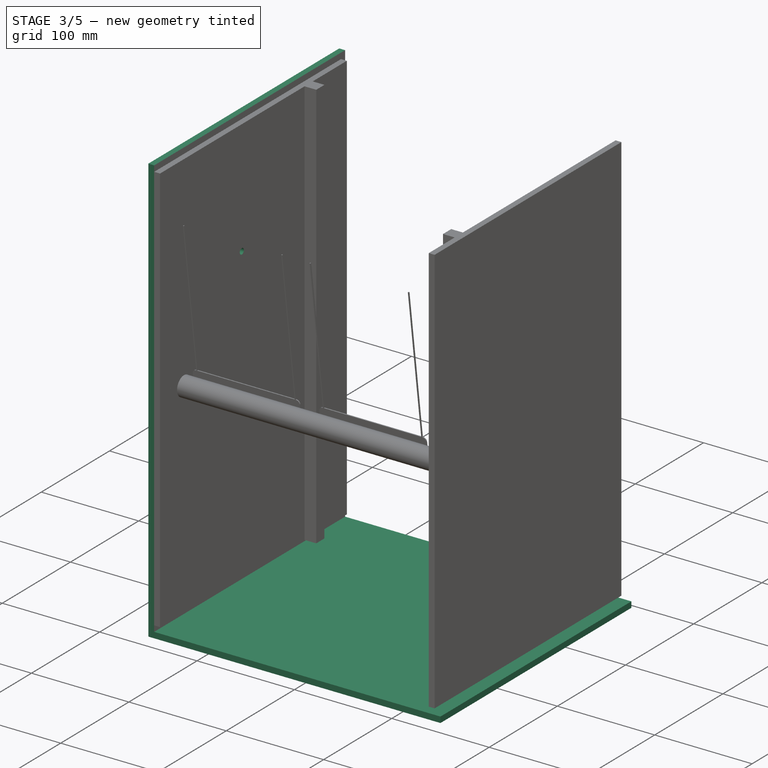
[diagram: stage 3 of 5 — iso view after this stage's code; geometry added in this stage tinted green]
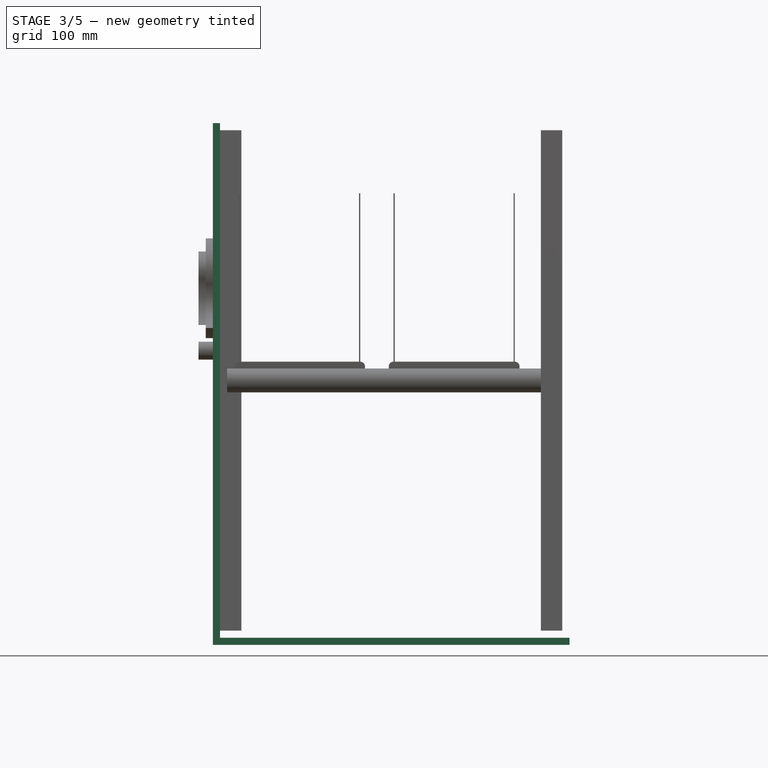
[diagram: stage 3 of 5 — front view after this stage's code; geometry added in this stage tinted green]
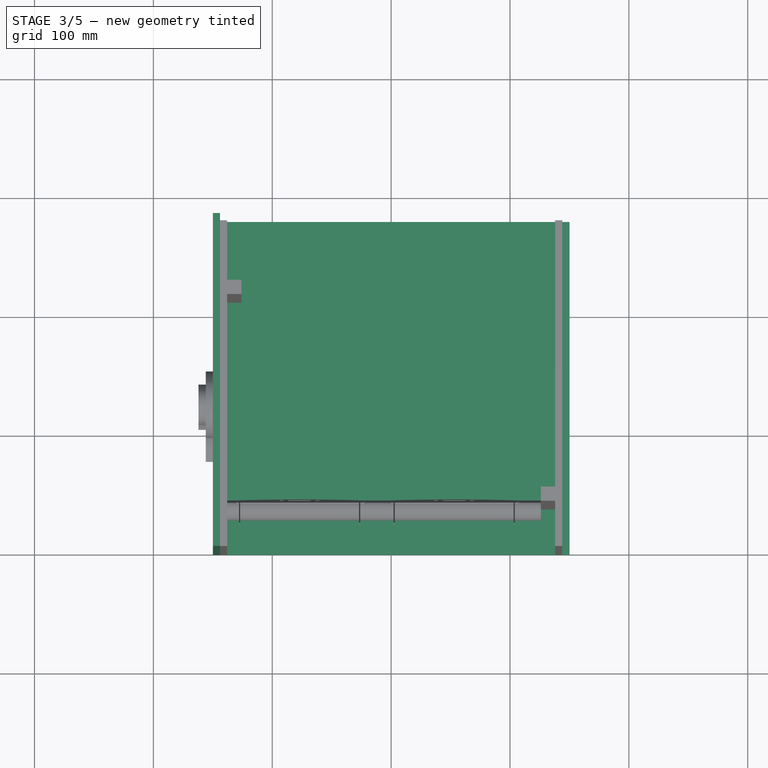
[diagram: stage 3 of 5 — top view after this stage's code; geometry added in this stage tinted green]
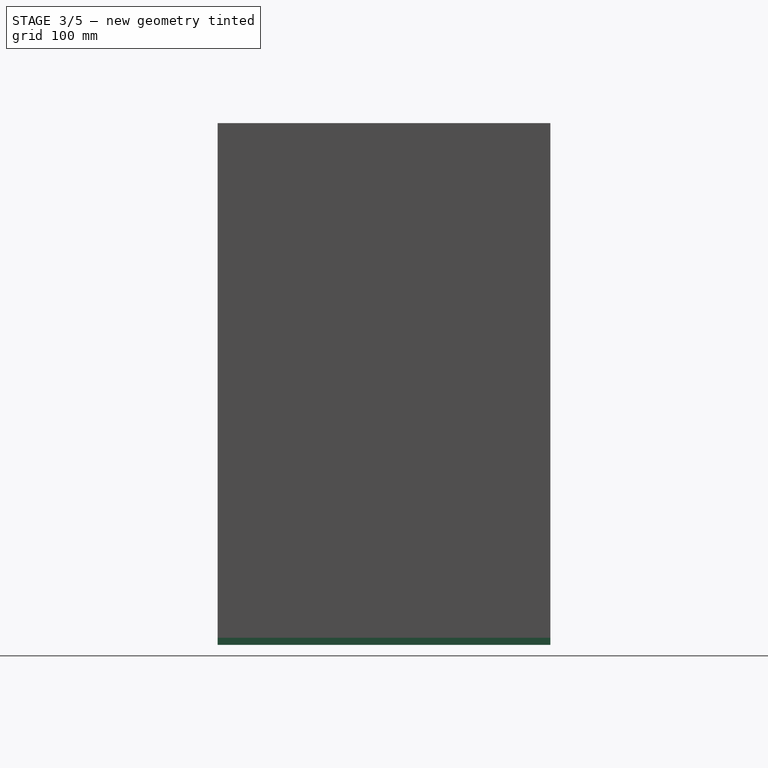
[diagram: stage 3 of 5 — right view after this stage's code; geometry added in this stage tinted green]
FEATURE [PartDesign::Body] Body  label="outer right"
  Group = -> [ShapeBinder,Sketch,Pad]
  Origin = -> Origin001
  Tip = -> Pad
FEATURE [PartDesign::ShapeBinder] ShapeBinder001  label="outer left profile binder"
  Support = -> [Sketch009]
  TraceSupport = false
FEATURE [Sketcher::SketchObject] Sketch010  label="outer left profile"
  ExternalGeometry = -> [ShapeBinder001]
  FullyConstrained = true
  MapMode = 5
  Placement = pos=(0,0,0) rot=(1,0,0;1.5708rad)
  Support = -> [XZ_Plane002]
  sketch-geometry (4):
    g0: LineSegment StartX=-150 StartY=216.5 StartZ=0 EndX=-144 EndY=216.5 EndZ=0
    g1: LineSegment StartX=-144 StartY=216.5 StartZ=0 EndX=-144 EndY=-216.5 EndZ=0
    g2: LineSegment StartX=-144 StartY=-216.5 StartZ=0 EndX=-150 EndY=-216.5 EndZ=0
    g3: LineSegment StartX=-150 StartY=-216.5 StartZ=0 EndX=-150 EndY=216.5 EndZ=0
  constraints (9):
    c: Coincident(g0,g1)
    c: Coincident(g1,g2)
    c: Coincident(g2,g3)
    c: Coincident(g3,g0)
    c: Horizontal(g2)
    c: Vertical(g1)
    c: Coincident(g-3,g0)
    c: Coincident(g-4,g0)
    c: Coincident(g-3,g2)
FEATURE [PartDesign::Pad] Pad001  label="outer left pad"
  Direction = (1,1,1)
  Length = 280
  Length2 = 100
  Placement = pos=(0,0,0) rot=(1,0,0;1.5708rad)
  Profile = -> Sketch010
  Reversed = true
  Type = 0
  expr: Length = <<common>>.BoxDepth
FEATURE [PartDesign::Body] Body005  label="inner top"
  Group = -> [ShapeBinder005,Sketch014,Pad005]
  Origin = -> Origin006
  Tip = -> Pad005
FEATURE [PartDesign::Pad] Pad006  label="outer bottom pad"
  Direction = (1,1,1)
  Length = 280
  Length2 = 100
  Placement = pos=(0,0,0) rot=(1,0,0;1.5708rad)
  Profile = -> Sketch015
  Reversed = true
  Type = 0
  expr: Length = <<common>>.BoxDepth
FEATURE [PartDesign::Body] Body006  label="outer bottom"
  Group = -> [ShapeBinder006,Sketch015,Pad006,Fillet002]
  Origin = -> Origin007
  Tip = -> Fillet002
FEATURE [App::DocumentObjectGroup] Group001  label="bottom"
  Group = -> [Body006,Body007]
FEATURE [Sketcher::SketchObject] Sketch021  label="snare mechanism guide"
  FullyConstrained = true
  Placement = pos=(-150,140,3.9e-14) rot=(0.57735,-0.57735,-0.57735;2.0944rad)
  Support = -> [YZ_Plane013]
  expr: Constraints[2] = <<common>>.BoxWidth / 2 - 130
  expr: Constraints[1] = <<common>>.BoxHeight / 2 - 130
  expr: Constraints[10] = (<<snare common>>.KnobCamAngle + 180) % 360 + 30
  expr: Constraints[30] = <<common>>.BoxWidth / 2 - 45
  sketch-geometry (13):
    g0: Circle CenterX=20 CenterY=92.5 CenterZ=0 NormalX=0 NormalY=0 NormalZ=1 AngleXU=0 Radius=10
    g1: Circle CenterX=-10 CenterY=92.5 CenterZ=0 NormalX=0 NormalY=0 NormalZ=1 AngleXU=0 Radius=50
    g2: LineSegment StartX=20 StartY=92.5 StartZ=0 EndX=0 EndY=92.5 EndZ=0
    g3: LineSegment StartX=-10 StartY=92.5 StartZ=0 EndX=20 EndY=92.5 EndZ=0
    g4: ArcOfCircle CenterX=105 CenterY=0 CenterZ=0 NormalX=0 NormalY=0 NormalZ=1 AngleXU=0 Radius=20 StartAngle=3.54083 EndAngle=6.83071
    g5: ArcOfCircle CenterX=43.454 CenterY=120.154 CenterZ=0 NormalX=0 NormalY=0 NormalZ=1 AngleXU=0 Radius=10 StartAngle=0.547521 EndAngle=3.54083
    g6: LineSegment StartX=34.2404 StartY=116.267 StartZ=0 EndX=86.5728 EndY=-7.77431 EndZ=0
    g7: LineSegment StartX=51.9922 StartY=125.36 StartZ=0 EndX=122.076 EndY=10.4114 EndZ=0
    g8: LineSegment StartX=105 StartY=0 StartZ=0 EndX=43.454 EndY=120.154 EndZ=0
    g9: ArcOfCircle CenterX=105 CenterY=0 CenterZ=0 NormalX=0 NormalY=0 NormalZ=1 AngleXU=0 Radius=10 StartAngle=3.9314 EndAngle=8.36
    g10: LineSegment StartX=100.153 StartY=8.74683 StartZ=0 EndX=97.9602 EndY=-7.10219 EndZ=0
    g11: LineSegment StartX=99.0566 StartY=0.822322 StartZ=0 EndX=114.906 EndY=-1.37054 EndZ=0
    g12: Circle CenterX=20 CenterY=25 CenterZ=0 NormalX=0 NormalY=0 NormalZ=1 AngleXU=0 Radius=7.5
  constraints (40):
    c: Diameter(g0) = 20
    c: DistanceY(g0) = 92.5
    c: DistanceX(g0) = 20
    c: Coincident(g0,g2)
    c: PointOnObject(g2,g-2)
    c: Perpendicular(g2,g-2)
    c: Radius(g1) = 50
    c: Coincident(g0,g3)
    c: Coincident(g1,g3)
    c: Distance(g3) = 30
    c: Angle(g3,g2) = 6.28319
    c: Coincident(g6,g5)
    c: Coincident(g7,g5)
    c: Coincident(g7,g4)
    c: Coincident(g6,g4)
    c: Angle(g4,g6,g4) = 0
    c: Angle(g7,g4,g4) = 3.14159
    c: Angle(g7,g5,g5) = 3.14159
    c: Angle(g6,g5,g5) = 0
    c: Coincident(g5,g8)
    c: Radius(g5) = 10
    c: Radius(g4) = 20
    c: Tangent(g1,g6)
    c: Distance(g8) = 135
    c: Coincident(g4,g9)
    c: Coincident(g4,g8)
    c: DistanceY(g4) = 0
    c: Coincident(g10,g9)
    c: Coincident(g10,g9)
    c: Diameter(g9) = 20
    c: DistanceX(g4) = 105
    c: PointOnObject(g11,g9)
    c: PointOnObject(g4,g11)
    c: PointOnObject(g11,g10)
    c: Perpendicular(g11,g10)
    c: Distance(g11) = 16
    c: Angle(g11,g8) = 2.18166
    c: Diameter(g12) = 15
    c: DistanceX(g12) = 20
    c: DistanceY(g12) = 25
FEATURE [PartDesign::ShapeBinder] ShapeBinder008  label="inner left snare mechanism guide binder"
  Placement = pos=(-150,140,3.9e-14) rot=(0.57735,-0.57735,-0.57735;2.0944rad)
  Support = -> [Sketch021]
  TraceSupport = false
FEATURE [PartDesign::ShapeBinder] ShapeBinder009  label="outer left snare mechanism guide binder"
  Placement = pos=(-150,140,3.9e-14) rot=(0.57735,-0.57735,-0.57735;2.0944rad)
  Support = -> [Sketch021]
  TraceSupport = false
FEATURE [PartDesign::ShapeBinder] ShapeBinder010  label="snare cam binder"
  Placement = pos=(-150,140,3.9e-14) rot=(0.57735,-0.57735,-0.57735;2.0944rad)
  Support = -> [Sketch021]
  TraceSupport = false
FEATURE [Sketcher::SketchObject] Sketch022  label="snare cam profile"
  ExternalGeometry = -> [ShapeBinder010]
  FullyConstrained = true
  MapMode = 2
  Placement = pos=(-150,140,3.9e-14) rot=(0.57735,-0.57735,-0.57735;2.0944rad)
  Support = -> [ShapeBinder010]
  sketch-geometry (2):
    g0: Circle CenterX=-10 CenterY=92.5 CenterZ=0 NormalX=0 NormalY=0 NormalZ=1 AngleXU=0 Radius=50
    g1: Circle CenterX=20 CenterY=92.5 CenterZ=0 NormalX=0 NormalY=0 NormalZ=1 AngleXU=0 Radius=3
  constraints (4):
    c: Diameter(g1) = 6
    c: Coincident(g-4,g0)
    c: Equal(g-4,g0)
    c: Coincident(g-3,g1)
FEATURE [PartDesign::Pad] Pad010  label="snare cam pad"
  Direction = (1,1,1)
  Length = 12
  Length2 = 100
  Placement = pos=(-150,140,3.9e-14) rot=(0.57735,-0.57735,-0.57735;2.0944rad)
  Profile = -> Sketch022
  Reversed = true
  Type = 0
  expr: Length = <<common>>.PlywoodBoardThickness * 2
FEATURE [Sketcher::SketchObject] Sketch028  label="outer left holes guide"
  ExternalGeometry = -> [ShapeBinder009]
  FullyConstrained = true
  MapMode = 2
  Placement = pos=(-150,140,3.9e-14) rot=(0.57735,-0.57735,-0.57735;2.0944rad)
  Support = -> [ShapeBinder009]
  sketch-geometry (1):
    g0: Circle CenterX=20 CenterY=92.5 CenterZ=0 NormalX=0 NormalY=0 NormalZ=1 AngleXU=0 Radius=10
  constraints (2):
    c: Coincident(g-3,g0)
    c: Equal(g0,g-3)
FEATURE [PartDesign::Hole] Hole002  label="outer left holes"
  BaseFeature = -> Pad001
  Depth = 25
  DepthType = 0
  Diameter = 6
  DrillForDepth = false
  DrillPoint = 0
  DrillPointAngle = 118
  HoleCutCountersinkAngle = 90
  HoleCutCustomValues = false
  HoleCutDepth = 0
  HoleCutDiameter = 6.1
  HoleCutType = 0
  ModelActualThread = false
  Placement = pos=(0,0,0) rot=(1,0,0;1.5708rad)
  Profile = -> Sketch028
  Tapered = false
  TaperedAngle = 90
  ThreadAngle = 0
  ThreadClass = 0
  ThreadCutOffInner = 0
  ThreadCutOffOuter = 0
  ThreadDirection = 0
  ThreadFit = 0
  ThreadPitch = 0
  ThreadSize = 0
  ThreadType = 0
  Threaded = false
FEATURE [PartDesign::Body] Body001  label="outer left"
  Group = -> [ShapeBinder001,Sketch010,Pad001,ShapeBinder009,Sketch028,Hole002]
  Origin = -> Origin002
  Tip = -> Hole002
FEATURE [Sketcher::SketchObject] Sketch029  label="inner left holes guide"
  ExternalGeometry = -> [ShapeBinder008]
  FullyConstrained = true
  MapMode = 2
  Placement = pos=(-150,140,3.9e-14) rot=(0.57735,-0.57735,-0.57735;2.0944rad)
  Support = -> [ShapeBinder008]
  sketch-geometry (1):
    g0: Circle CenterX=20 CenterY=92.5 CenterZ=0 NormalX=0 NormalY=0 NormalZ=1 AngleXU=0 Radius=10
  constraints (2):
    c: Coincident(g-3,g0)
    c: Equal(g-3,g0)
FEATURE [PartDesign::Hole] Hole003  label="inner left holes"
  BaseFeature = -> Pad015
  Depth = 25
  DepthType = 0
  Diameter = 6
  DrillForDepth = false
  DrillPoint = 0
  DrillPointAngle = 118
  HoleCutCountersinkAngle = 90
  HoleCutCustomValues = false
  HoleCutDepth = 0
  HoleCutDiameter = 6.1
  HoleCutType = 0
  ModelActualThread = false
  Placement = pos=(0,0,0) rot=(1,0,0;1.5708rad)
  Profile = -> Sketch029
  Tapered = false
  TaperedAngle = 90
  ThreadAngle = 0
  ThreadClass = 0
  ThreadCutOffInner = 0
  ThreadCutOffOuter = 0
  ThreadDirection = 0
  ThreadFit = 0
  ThreadPitch = 0
  ThreadSize = 0
  ThreadType = 0
  Threaded = false
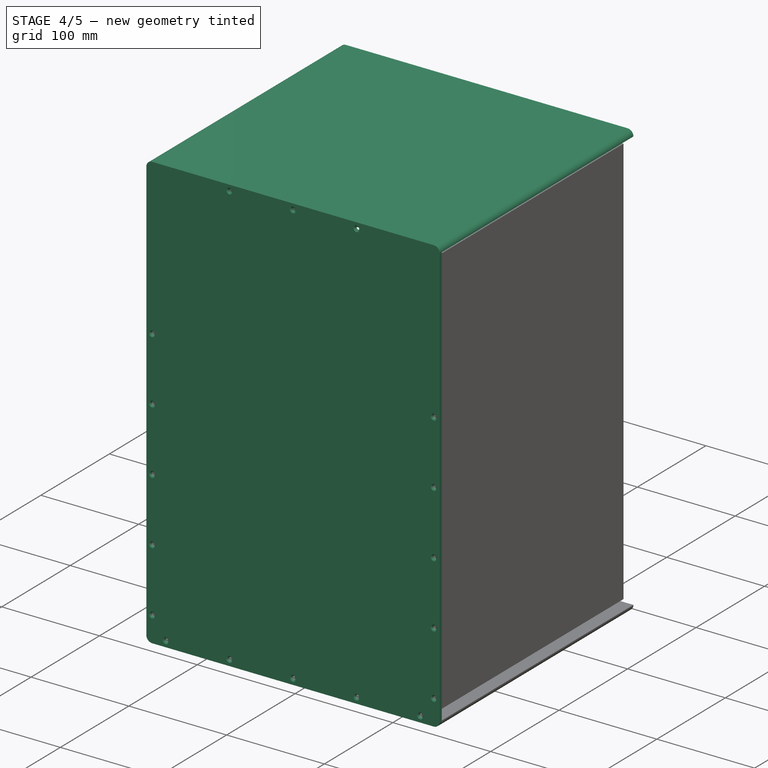
[diagram: stage 4 of 5 — iso view after this stage's code; geometry added in this stage tinted green]
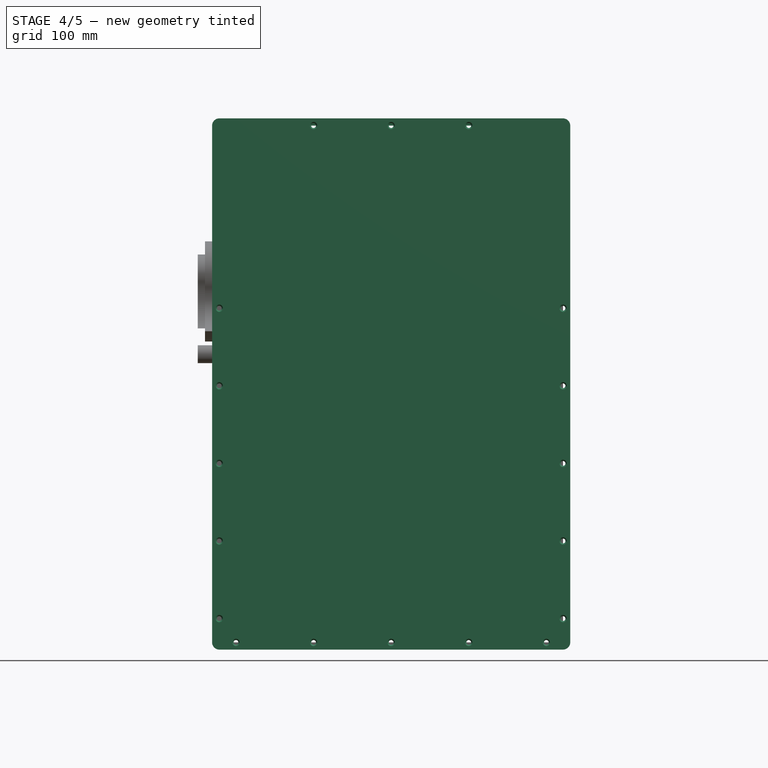
[diagram: stage 4 of 5 — front view after this stage's code; geometry added in this stage tinted green]
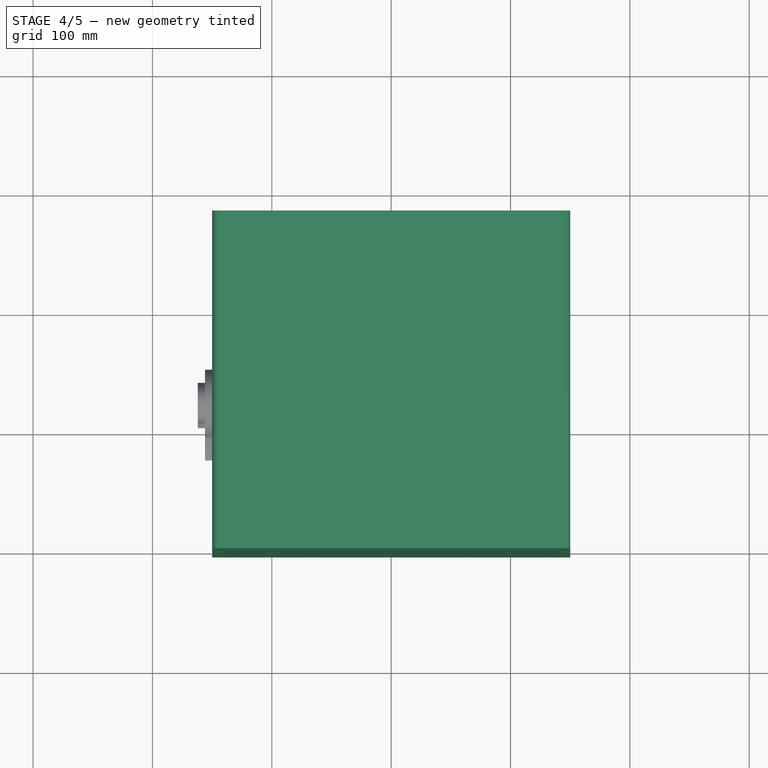
[diagram: stage 4 of 5 — top view after this stage's code; geometry added in this stage tinted green]
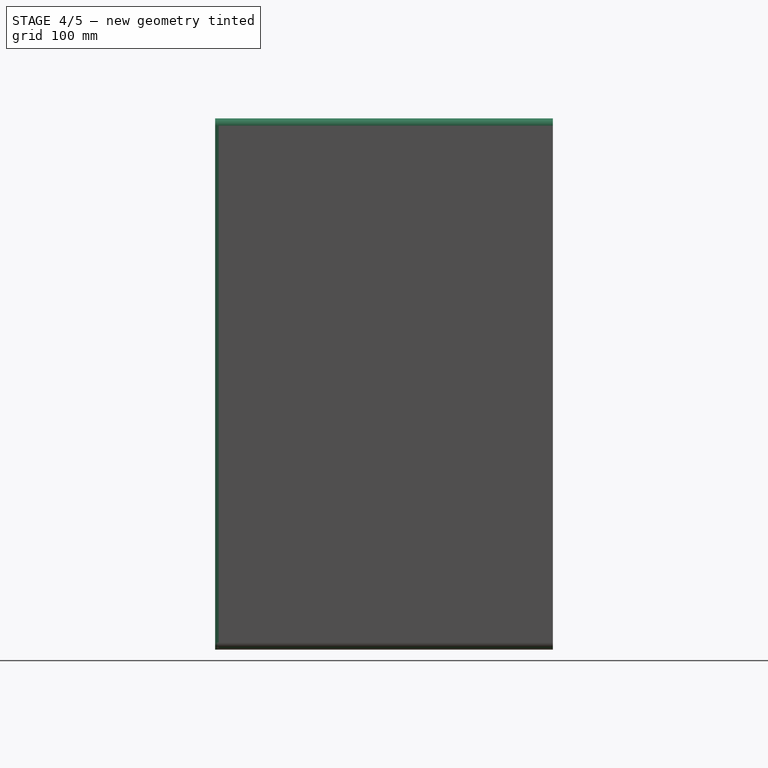
[diagram: stage 4 of 5 — right view after this stage's code; geometry added in this stage tinted green]
FEATURE [PartDesign::ShapeBinder] ShapeBinder004  label="outer top profile binder"
  Support = -> [Sketch009]
  TraceSupport = false
FEATURE [PartDesign::ShapeBinder] ShapeBinder005  label="inner top profile binder"
  Support = -> [Sketch009]
  TraceSupport = false
FEATURE [PartDesign::ShapeBinder] ShapeBinder006  label="outer bottom profile binder"
  Support = -> [Sketch009]
  TraceSupport = false
FEATURE [PartDesign::ShapeBinder] ShapeBinder007  label="inner bottom profile binder"
  Support = -> [Sketch009]
  TraceSupport = false
FEATURE [Sketcher::SketchObject] Sketch013  label="outer top profile"
  ExternalGeometry = -> [ShapeBinder004]
  FullyConstrained = true
  MapMode = 5
  Placement = pos=(0,0,0) rot=(1,0,0;1.5708rad)
  Support = -> [XZ_Plane005]
  sketch-geometry (4):
    g0: LineSegment StartX=-150 StartY=222.5 StartZ=0 EndX=150 EndY=222.5 EndZ=0
    g1: LineSegment StartX=150 StartY=222.5 StartZ=0 EndX=150 EndY=216.5 EndZ=0
    g2: LineSegment StartX=150 StartY=216.5 StartZ=0 EndX=-150 EndY=216.5 EndZ=0
    g3: LineSegment StartX=-150 StartY=216.5 StartZ=0 EndX=-150 EndY=222.5 EndZ=0
  constraints (9):
    c: Coincident(g0,g1)
    c: Coincident(g1,g2)
    c: Coincident(g2,g3)
    c: Coincident(g3,g0)
    c: Horizontal(g2)
    c: Vertical(g1)
    c: Coincident(g-4,g0)
    c: Coincident(g-3,g2)
    c: Coincident(g-4,g0)
FEATURE [Sketcher::SketchObject] Sketch014  label="inner top profile"
  ExternalGeometry = -> [ShapeBinder005]
  FullyConstrained = true
  MapMode = 5
  Placement = pos=(0,0,0) rot=(1,0,0;1.5708rad)
  Support = -> [XZ_Plane006]
  sketch-geometry (4):
    g0: LineSegment StartX=-144 StartY=216.5 StartZ=0 EndX=144 EndY=216.5 EndZ=0
    g1: LineSegment StartX=144 StartY=216.5 StartZ=0 EndX=144 EndY=210.5 EndZ=0
    g2: LineSegment StartX=144 StartY=210.5 StartZ=0 EndX=-144 EndY=210.5 EndZ=0
    g3: LineSegment StartX=-144 StartY=210.5 StartZ=0 EndX=-144 EndY=216.5 EndZ=0
  constraints (9):
    c: Coincident(g0,g1)
    c: Coincident(g1,g2)
    c: Coincident(g2,g3)
    c: Coincident(g3,g0)
    c: Horizontal(g2)
    c: Vertical(g1)
    c: Coincident(g-4,g0)
    c: Coincident(g-3,g2)
    c: Coincident(g-5,g0)
FEATURE [Sketcher::SketchObject] Sketch015  label="outer bottom profile"
  ExternalGeometry = -> [ShapeBinder006]
  FullyConstrained = true
  MapMode = 5
  Placement = pos=(0,0,0) rot=(1,0,0;1.5708rad)
  Support = -> [XZ_Plane007]
  sketch-geometry (4):
    g0: LineSegment StartX=-150 StartY=-216.5 StartZ=0 EndX=150 EndY=-216.5 EndZ=0
    g1: LineSegment StartX=150 StartY=-216.5 StartZ=0 EndX=150 EndY=-222.5 EndZ=0
    g2: LineSegment StartX=150 StartY=-222.5 StartZ=0 EndX=-150 EndY=-222.5 EndZ=0
    g3: LineSegment StartX=-150 StartY=-222.5 StartZ=0 EndX=-150 EndY=-216.5 EndZ=0
  constraints (9):
    c: Coincident(g0,g1)
    c: Coincident(g1,g2)
    c: Coincident(g2,g3)
    c: Coincident(g3,g0)
    c: Horizontal(g0)
    c: Vertical(g1)
    c: Coincident(g-3,g2)
    c: Coincident(g-4,g0)
    c: Coincident(g-3,g1)
FEATURE [Sketcher::SketchObject] Sketch016  label="inner bottom profile"
  ExternalGeometry = -> [ShapeBinder007]
  FullyConstrained = true
  MapMode = 5
  Placement = pos=(0,0,0) rot=(1,0,0;1.5708rad)
  Support = -> [XZ_Plane008]
  sketch-geometry (4):
    g0: LineSegment StartX=-144 StartY=-210.5 StartZ=0 EndX=144 EndY=-210.5 EndZ=0
    g1: LineSegment StartX=144 StartY=-210.5 StartZ=0 EndX=144 EndY=-216.5 EndZ=0
    g2: LineSegment StartX=144 StartY=-216.5 StartZ=0 EndX=-144 EndY=-216.5 EndZ=0
    g3: LineSegment StartX=-144 StartY=-216.5 StartZ=0 EndX=-144 EndY=-210.5 EndZ=0
  constraints (9):
    c: Coincident(g0,g1)
    c: Coincident(g1,g2)
    c: Coincident(g2,g3)
    c: Coincident(g3,g0)
    c: Horizontal(g0)
    c: Vertical(g1)
    c: Coincident(g-4,g2)
    c: Coincident(g-3,g0)
    c: Coincident(g-5,g1)
FEATURE [PartDesign::Pad] Pad004  label="outer top pad"
  Direction = (1,1,1)
  Length = 280
  Length2 = 100
  Placement = pos=(0,0,0) rot=(1,0,0;1.5708rad)
  Profile = -> Sketch013
  Reversed = true
  Type = 0
  expr: Length = <<common>>.BoxDepth
FEATURE [PartDesign::Body] Body008  label="back plate"
  Group = -> [Sketch017,Pad008,Sketch018,Pocket]
  Origin = -> Origin010
  Tip = -> Pocket
FEATURE [App::Part] Part001  label="back"
  Group = -> [Body008]
  Origin = -> Origin009
  Placement = pos=(0,280,0) rot=(0,0,1;0rad)
  expr: .Placement.Base.y = <<common>>.BoxDepth
FEATURE [Sketcher::SketchObject] Sketch019  label="front plate area"
  FullyConstrained = true
  MapMode = 5
  Placement = pos=(0,0,0) rot=(1,0,0;1.5708rad)
  Support = -> [XZ_Plane012]
  expr: Constraints[8] = <<common>>.BoxWidth
  expr: Constraints[9] = <<common>>.BoxHeight
  sketch-geometry (4):
    g0: LineSegment StartX=-150 StartY=222.5 StartZ=0 EndX=150 EndY=222.5 EndZ=0
    g1: LineSegment StartX=150 StartY=222.5 StartZ=0 EndX=150 EndY=-222.5 EndZ=0
    g2: LineSegment StartX=150 StartY=-222.5 StartZ=0 EndX=-150 EndY=-222.5 EndZ=0
    g3: LineSegment StartX=-150 StartY=-222.5 StartZ=0 EndX=-150 EndY=222.5 EndZ=0
  constraints (10):
    c: Coincident(g0,g1)
    c: Coincident(g1,g2)
    c: Coincident(g2,g3)
    c: Coincident(g3,g0)
    c: Horizontal(g2)
    c: Vertical(g3)
    c: Symmetric(g0,g0,g-2)
    c: Symmetric(g0,g1,g-1)
    c: DistanceX(g0,g0) = 300
    c: DistanceY(g1,g1) = 445
FEATURE [PartDesign::Pad] Pad009  label="front plate pad"
  Direction = (1,1,1)
  Length = 3
  Length2 = 100
  Placement = pos=(0,0,0) rot=(1,0,0;1.5708rad)
  Profile = -> Sketch019
  Type = 0
FEATURE [Sketcher::SketchObject] Sketch020  label="front plate screw holes guide"
  ExternalGeometry = -> [Sketch019]
  FullyConstrained = false
  MapMode = 5
  Placement = pos=(0,-3,7e-16) rot=(1,0,0;1.5708rad)
  Support = -> [Pad009]
  expr: Constraints[8] = <<common>>.PlywoodBoardThickness
  expr: Constraints[48] = <<common>>.BoxWidth / 60 * 13
  expr: Constraints[41] = <<common>>.BoxWidth / 60 * 13
  expr: Constraints[9] = <<common>>.PlywoodBoardThickness
  expr: Constraints[10] = <<common>>.PlywoodBoardThickness
  expr: Constraints[16] = <<common>>.BoxWidth / 60 * 13
  expr: Constraints[18] = <<common>>.BoxWidth / 60 * 13
  expr: Constraints[11] = <<common>>.PlywoodBoardThickness
  expr: Constraints[30] = <<common>>.BoxWidth / 60 * 4
  expr: Constraints[40] = <<common>>.BoxWidth / 60 * 13
  expr: Constraints[31] = <<common>>.BoxWidth / 60 * 13
  expr: Constraints[33] = <<common>>.BoxWidth / 60 * 13
  expr: Constraints[32] = <<common>>.BoxWidth / 60 * 13
  expr: Constraints[34] = <<common>>.BoxWidth / 60 * 13
  expr: Constraints[37] = <<common>>.BoxWidth / 60 * 13
  expr: Constraints[49] = <<common>>.BoxWidth / 60 * 13
  expr: Constraints[39] = <<common>>.BoxWidth / 60 * 4
  expr: Constraints[38] = <<common>>.BoxWidth / 60 * 13
  expr: Constraints[42] = <<common>>.BoxWidth / 60 * 13
  expr: Constraints[43] = <<common>>.BoxWidth / 60 * 13
  sketch-geometry (22):
    g0: LineSegment StartX=-144 StartY=216.5 StartZ=0 EndX=144 EndY=216.5 EndZ=0
    g1: LineSegment StartX=144 StartY=216.5 StartZ=0 EndX=144 EndY=-216.5 EndZ=0
    g2: LineSegment StartX=144 StartY=-216.5 StartZ=0 EndX=-144 EndY=-216.5 EndZ=0
    g3: LineSegment StartX=-144 StartY=-216.5 StartZ=0 EndX=-144 EndY=216.5 EndZ=0
    g4: Circle CenterX=-130 CenterY=-216.5 CenterZ=0 NormalX=0 NormalY=0 NormalZ=1 AngleXU=0 Radius=18.5613
    g5: Circle CenterX=0 CenterY=-216.5 CenterZ=0 NormalX=0 NormalY=0 NormalZ=1 AngleXU=0 Radius=16.7219
    g6: Circle CenterX=-65 CenterY=-216.5 CenterZ=0 NormalX=0 NormalY=0 NormalZ=1 AngleXU=0 Radius=17.6095
    g7: Circle CenterX=-144 CenterY=-131.5 CenterZ=0 NormalX=0 NormalY=0 NormalZ=1 AngleXU=0 Radius=18.2362
    g8: Circle CenterX=-144 CenterY=-196.5 CenterZ=0 NormalX=0 NormalY=0 NormalZ=1 AngleXU=0 Radius=19.1309
    g9: Circle CenterX=-144 CenterY=-66.5 CenterZ=0 NormalX=0 NormalY=0 NormalZ=1 AngleXU=0 Radius=18.0387
    g10: Circle CenterX=-144 CenterY=63.5 CenterZ=0 NormalX=0 NormalY=0 NormalZ=1 AngleXU=0 Radius=17.637
    g11: Circle CenterX=-144 CenterY=-1.5 CenterZ=0 NormalX=0 NormalY=0 NormalZ=1 AngleXU=0 Radius=16.9465
    g12: Circle CenterX=144 CenterY=63.5 CenterZ=0 NormalX=0 NormalY=0 NormalZ=1 AngleXU=0 Radius=16.9465
    g13: Circle CenterX=144 CenterY=-66.5 CenterZ=0 NormalX=0 NormalY=0 NormalZ=1 AngleXU=0 Radius=16.3731
    g14: Circle CenterX=144 CenterY=-1.5 CenterZ=0 NormalX=0 NormalY=0 NormalZ=1 AngleXU=0 Radius=17.3641
    g15: Circle CenterX=144 CenterY=-131.5 CenterZ=0 NormalX=0 NormalY=0 NormalZ=1 AngleXU=0 Radius=16.5904
    g16: Circle CenterX=144 CenterY=-196.5 CenterZ=0 NormalX=0 NormalY=0 NormalZ=1 AngleXU=0 Radius=16.2999
    g17: Circle CenterX=65 CenterY=-216.5 CenterZ=0 NormalX=0 NormalY=0 NormalZ=1 AngleXU=0 Radius=16.4623
    g18: Circle CenterX=130 CenterY=-216.5 CenterZ=0 NormalX=0 NormalY=0 NormalZ=1 AngleXU=0 Radius=17.039
    g19: Circle CenterX=0 CenterY=216.5 CenterZ=0 NormalX=0 NormalY=0 NormalZ=1 AngleXU=0 Radius=16.8915
    g20: Circle CenterX=-65 CenterY=216.5 CenterZ=0 NormalX=0 NormalY=0 NormalZ=1 AngleXU=0 Radius=16.3128
    g21: Circle CenterX=65 CenterY=216.5 CenterZ=0 NormalX=0 NormalY=0 NormalZ=1 AngleXU=0 Radius=17.2809
  constraints (50):
    c: Coincident(g0,g1)
    c: Coincident(g1,g2)
    c: Coincident(g2,g3)
    c: Coincident(g3,g0)
    c: Horizontal(g0)
    c: Horizontal(g2)
    c: Vertical(g1)
    c: Vertical(g3)
    c: DistanceY(g0,g-4) = 6
    c: DistanceX(g-4,g0) = 6
    c: DistanceX(g1,g-6) = 6
    c: DistanceY(g-6,g1) = 6
    c: PointOnObject(g5,g2)
    c: PointOnObject(g5,g-2)
    c: PointOnObject(g4,g2)
    c: PointOnObject(g6,g2)
    c: DistanceX(g4,g6) = 65
    c: DistanceX(g2,g2) = 288
    c: DistanceX(g6,g5) = 65
    c: DistanceX(g-6,g4) = 20
    c: PointOnObject(g8,g3)
    c: PointOnObject(g7,g3)
    c: PointOnObject(g9,g3)
    c: PointOnObject(g11,g3)
    c: PointOnObject(g10,g3)
    c: PointOnObject(g16,g1)
    c: PointOnObject(g15,g1)
    c: PointOnObject(g14,g1)
    c: PointOnObject(g13,g1)
    c: PointOnObject(g12,g1)
    c: DistanceY(g2,g8) = 20
    c: DistanceY(g8,g7) = 65
    c: DistanceY(g7,g9) = 65
    c: DistanceY(g9,g11) = 65
    c: DistanceY(g11,g10) = 65
    c: PointOnObject(g17,g2)
    c: PointOnObject(g18,g2)
    c: DistanceX(g5,g17) = 65
    c: DistanceX(g17,g18) = 65
    c: DistanceY(g1,g16) = 20
    c: DistanceY(g16,g15) = 65
    c: DistanceY(g15,g13) = 65
    c: DistanceY(g13,g14) = 65
    c: DistanceY(g14,g12) = 65
    c: PointOnObject(g20,g0)
    c: PointOnObject(g19,g0)
    c: PointOnObject(g21,g0)
    c: PointOnObject(g19,g-2)
    c: DistanceX(g20,g19) = 65
    c: DistanceX(g19,g21) = 65
FEATURE [PartDesign::Hole] Hole  label="front plate screw holes"
  BaseFeature = -> Pad009
  Depth = 25
  DepthType = 0
  Diameter = 4
  DrillForDepth = false
  DrillPoint = 0
  DrillPointAngle = 118
  HoleCutCountersinkAngle = 90
  HoleCutCustomValues = false
  HoleCutDepth = 3.6
  HoleCutDiameter = 6.1
  HoleCutType = 2
  ModelActualThread = false
  Placement = pos=(0,0,0) rot=(1,0,0;1.5708rad)
  Profile = -> Sketch020
  Tapered = false
  TaperedAngle = 90
  ThreadAngle = 0
  ThreadClass = 0
  ThreadCutOffInner = 0
  ThreadCutOffOuter = 0
  ThreadDirection = 0
  ThreadFit = 0
  ThreadPitch = 0
  ThreadSize = 0
  ThreadType = 0
  Threaded = false
FEATURE [PartDesign::Fillet] Fillet  label="front plate fillet"
  Base = -> Hole [Edge2,Edge1,Edge8,Edge5]
  BaseFeature = -> Hole
  Placement = pos=(0,0,0) rot=(1,0,0;1.5708rad)
  Radius = 5.999
  SupportTransform = false
  expr: Radius = <<common>>.PlywoodBoardThickness - 0.001
FEATURE [PartDesign::Body] Body009  label="front plate"
  Group = -> [Sketch019,Pad009,Sketch020,Hole,Fillet]
  Origin = -> Origin012
  Tip = -> Fillet
FEATURE [App::Part] Part002  label="front"
  Group = -> [Body009]
  Origin = -> Origin011
FEATURE [PartDesign::Fillet] Fillet001  label="outer top fillet"
  Base = -> Pad004 [Edge2,Edge1]
  BaseFeature = -> Pad004
  Placement = pos=(0,0,0) rot=(1,0,0;1.5708rad)
  Radius = 5.999
  SupportTransform = false
  expr: Radius = <<common>>.PlywoodBoardThickness - 0.001
FEATURE [PartDesign::Body] Body004  label="outer top"
  Group = -> [ShapeBinder004,Sketch013,Pad004,Fillet001]
  Origin = -> Origin005
  Tip = -> Fillet001
FEATURE [App::DocumentObjectGroup] Group  label="top"
  Group = -> [Body004,Body005]
FEATURE [PartDesign::Fillet] Fillet002  label="outer bottom fillet"
  Base = -> Pad006 [Edge8,Edge5]
  BaseFeature = -> Pad006
  Placement = pos=(0,0,0) rot=(1,0,0;1.5708rad)
  Radius = 5.999
  SupportTransform = false
  expr: Radius = <<common>>.PlywoodBoardThickness - 0.001
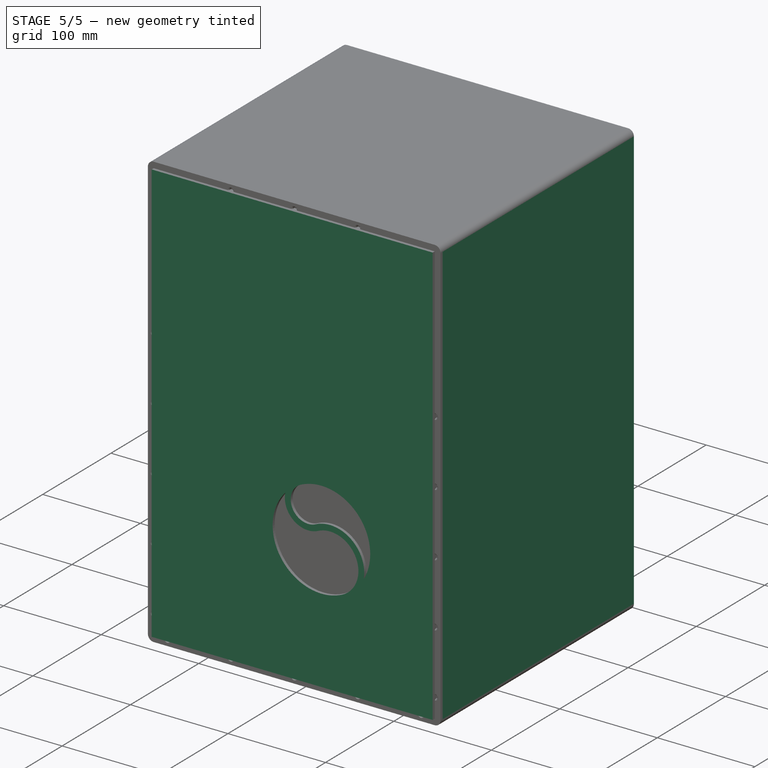
[diagram: stage 5 of 5 — iso view after this stage's code; geometry added in this stage tinted green]
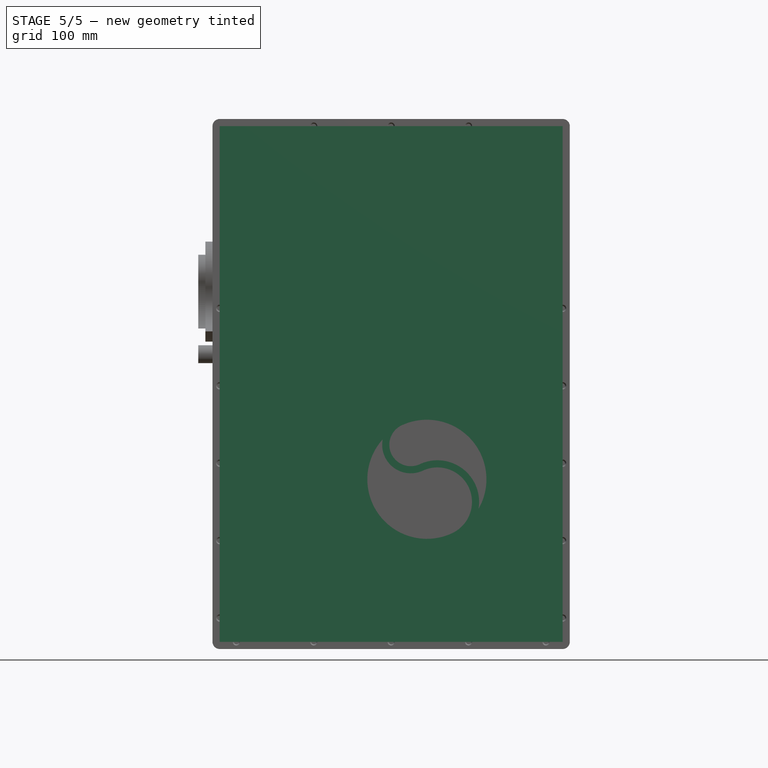
[diagram: stage 5 of 5 — front view after this stage's code; geometry added in this stage tinted green]
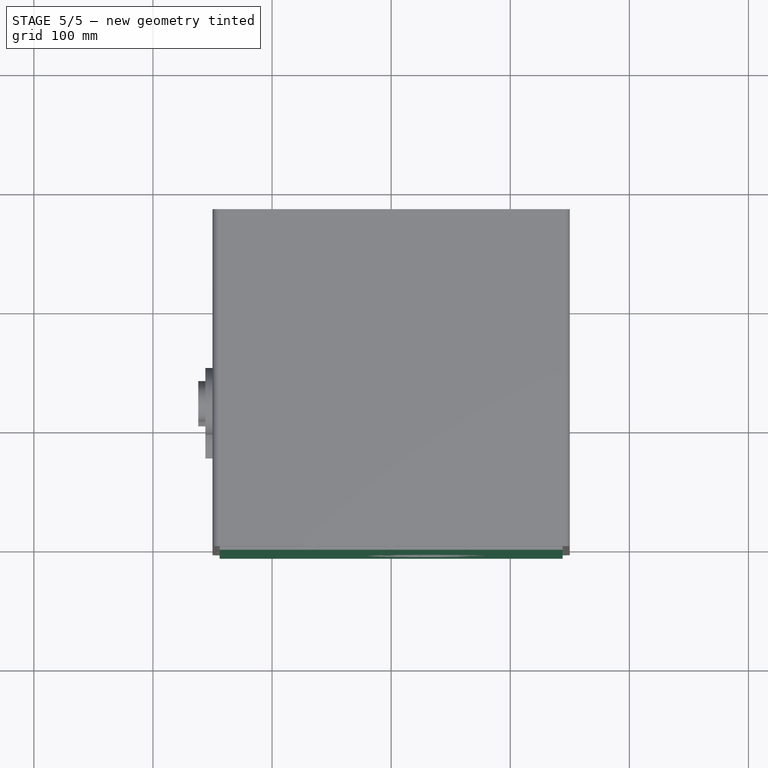
[diagram: stage 5 of 5 — top view after this stage's code; geometry added in this stage tinted green]
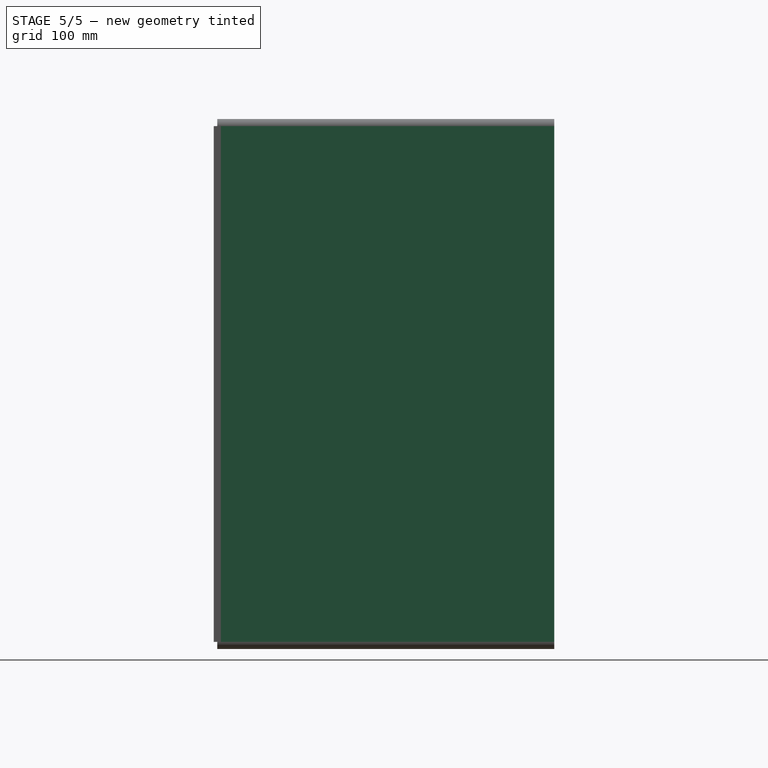
[diagram: stage 5 of 5 — right view after this stage's code; geometry added in this stage tinted green]
FEATURE [Spreadsheet::Sheet] Spreadsheet  label="common"
  cells = A1=Height; B1(Height)=460; A2=BumperHeight; B2(BumperHeight)=15; A3=PlywoodBoardWidth; B3(PlywoodBoardWidth)=300; A4=BoxHeight; B4(BoxHeight)==Height - BumperHeight; A5=BoxWidth; B5(BoxWidth)==PlywoodBoardWidth; A6=BoxDepth; B6(BoxDepth)==BoxWidth * 0.9333333; A7=PlywoodBoardThickness; B7(PlywoodBoardThickness)=6
FEATURE [Sketcher::SketchObject] Sketch009  label="box profile"
  FullyConstrained = true
  MapMode = 5
  Placement = pos=(0,0,0) rot=(1,0,0;1.5708rad)
  expr: Constraints[57] = <<common>>.PlywoodBoardThickness
  expr: Constraints[51] = <<common>>.PlywoodBoardThickness
  expr: Constraints[55] = <<common>>.PlywoodBoardThickness
  expr: Constraints[53] = <<common>>.PlywoodBoardThickness
  expr: Constraints[54] = <<common>>.PlywoodBoardThickness
  expr: Constraints[56] = <<common>>.PlywoodBoardThickness
  expr: Constraints[58] = <<common>>.PlywoodBoardThickness
  expr: Constraints[70] = <<common>>.BoxHeight
  expr: Constraints[47] = <<common>>.BoxWidth
  expr: Constraints[73] = <<common>>.PlywoodBoardThickness
  sketch-geometry (31):
    g0: LineSegment StartX=-144 StartY=210.5 StartZ=0 EndX=-138 EndY=210.5 EndZ=0
    g1: LineSegment StartX=-138 StartY=210.5 StartZ=0 EndX=-138 EndY=-210.5 EndZ=0
    g2: LineSegment StartX=-138 StartY=-210.5 StartZ=0 EndX=-144 EndY=-210.5 EndZ=0
    g3: LineSegment StartX=-150 StartY=216.5 StartZ=0 EndX=-144 EndY=216.5 EndZ=0
    g4: LineSegment StartX=-144 StartY=216.5 StartZ=0 EndX=-144 EndY=-216.5 EndZ=0
    g5: LineSegment StartX=-144 StartY=-216.5 StartZ=0 EndX=-150 EndY=-216.5 EndZ=0
    g6: LineSegment StartX=-150 StartY=-216.5 StartZ=0 EndX=-150 EndY=216.5 EndZ=0
    g7: LineSegment StartX=-144 StartY=210.5 StartZ=0 EndX=144 EndY=210.5 EndZ=0
    g8: LineSegment StartX=144 StartY=210.5 StartZ=0 EndX=144 EndY=216.5 EndZ=0
    g9: LineSegment StartX=144 StartY=216.5 StartZ=0 EndX=-144 EndY=216.5 EndZ=0
    g10: LineSegment StartX=-144 StartY=216.5 StartZ=0 EndX=-144 EndY=210.5 EndZ=0
    g11: LineSegment StartX=-150 StartY=216.5 StartZ=0 EndX=150 EndY=216.5 EndZ=0
    g12: LineSegment StartX=150 StartY=216.5 StartZ=0 EndX=150 EndY=222.5 EndZ=0
    g13: LineSegment StartX=150 StartY=222.5 StartZ=0 EndX=-150 EndY=222.5 EndZ=0
    g14: LineSegment StartX=-150 StartY=222.5 StartZ=0 EndX=-150 EndY=216.5 EndZ=0
    g15: LineSegment StartX=144 StartY=216.5 StartZ=0 EndX=150 EndY=216.5 EndZ=0
    g16: LineSegment StartX=150 StartY=216.5 StartZ=0 EndX=150 EndY=-216.5 EndZ=0
    g17: LineSegment StartX=150 StartY=-216.5 StartZ=0 EndX=144 EndY=-216.5 EndZ=0
    g18: LineSegment StartX=144 StartY=-216.5 StartZ=0 EndX=144 EndY=216.5 EndZ=0
    g19: LineSegment StartX=138 StartY=210.5 StartZ=0 EndX=144 EndY=210.5 EndZ=0
    g20: LineSegment StartX=144 StartY=210.5 StartZ=0 EndX=144 EndY=-210.5 EndZ=0
    g21: LineSegment StartX=144 StartY=-210.5 StartZ=0 EndX=138 EndY=-210.5 EndZ=0
    g22: LineSegment StartX=138 StartY=-210.5 StartZ=0 EndX=138 EndY=210.5 EndZ=0
    g23: LineSegment StartX=144 StartY=-210.5 StartZ=0 EndX=-144 EndY=-210.5 EndZ=0
    g24: LineSegment StartX=-144 StartY=-210.5 StartZ=0 EndX=-144 EndY=-216.5 EndZ=0
    g25: LineSegment StartX=-144 StartY=-216.5 StartZ=0 EndX=144 EndY=-216.5 EndZ=0
    g26: LineSegment StartX=144 StartY=-216.5 StartZ=0 EndX=144 EndY=-210.5 EndZ=0
    g27: LineSegment StartX=-150 StartY=-216.5 StartZ=0 EndX=150 EndY=-216.5 EndZ=0
    g28: LineSegment StartX=150 StartY=-216.5 StartZ=0 EndX=150 EndY=-222.5 EndZ=0
    g29: LineSegment StartX=150 StartY=-222.5 StartZ=0 EndX=-150 EndY=-222.5 EndZ=0
    g30: LineSegment StartX=-150 StartY=-222.5 StartZ=0 EndX=-150 EndY=-216.5 EndZ=0
  constraints (78):
    c: Coincident(g0,g1)
    c: Coincident(g1,g2)
    c: Horizontal(g0)
    c: Horizontal(g2)
    c: Vertical(g1)
    c: Coincident(g3,g4)
    c: Coincident(g4,g5)
    c: Coincident(g5,g6)
    c: Coincident(g6,g3)
    c: Horizontal(g3)
    c: Horizontal(g5)
    c: Coincident(g7,g8)
    c: Coincident(g8,g9)
    c: Coincident(g9,g10)
    c: Coincident(g10,g7)
    c: Vertical(g8)
    c: Vertical(g10)
    c: Coincident(g11,g12)
    c: Coincident(g12,g13)
    c: Coincident(g13,g14)
    c: Coincident(g14,g11)
    c: Vertical(g12)
    c: Vertical(g14)
    c: Coincident(g15,g16)
    c: Coincident(g16,g17)
    c: Coincident(g17,g18)
    c: Coincident(g18,g15)
    c: Horizontal(g15)
    c: Horizontal(g17)
    c: Coincident(g19,g20)
    c: Coincident(g20,g21)
    c: Coincident(g21,g22)
    c: Coincident(g22,g19)
    c: Horizontal(g21)
    c: Vertical(g22)
    c: Coincident(g23,g24)
    c: Coincident(g24,g25)
    c: Coincident(g25,g26)
    c: Coincident(g26,g23)
    c: Horizontal(g23)
    c: Vertical(g24)
    c: Coincident(g27,g28)
    c: Coincident(g28,g29)
    c: Coincident(g29,g30)
    c: Coincident(g30,g27)
    c: Vertical(g28)
    c: Vertical(g30)
    c: DistanceX(g13,g13) = 300
    c: Symmetric(g13,g12,g-2)
    c: Tangent(g11,g9)
    c: DistanceX(g9,g9) = 288
    c: Distance(g14) = 6
    c: Symmetric(g9,g8,g-2)
    c: DistanceY(g10,g10) = 6
    c: DistanceX(g15,g15) = 6
    c: DistanceX(g19,g19) = 6
    c: DistanceX(g3,g3) = 6
    c: DistanceY(g24,g24) = 6
    c: DistanceY(g30,g30) = 6
    c: Symmetric(g19,g20,g-1)
    c: Symmetric(g15,g16,g-1)
    c: Tangent(g18,g20)
    c: Symmetric(g0,g2,g-1)
    c: Symmetric(g3,g5,g-1)
    c: Symmetric(g28,g29,g-2)
    c: Symmetric(g25,g24,g-2)
    c: Tangent(g25,g27)
    c: Coincident(g11,g15)
    c: Coincident(g3,g11)
    c: Coincident(g5,g27)
    c: DistanceY(g29,g13) = 445
    c: Tangent(g19,g7)
    c: Tangent(g26,g18)
    c: DistanceX(g7,g0) = 6
    c: Tangent(g4,g10)
    c: Tangent(g0,g7) = -1.5708
    c: DistanceY(g6,g6) = 433
    c: DistanceY(g1,g1) = 421
FEATURE [PartDesign::ShapeBinder] ShapeBinder  label="outer right profile binder"
  Support = -> [Sketch009]
  TraceSupport = false
FEATURE [Sketcher::SketchObject] Sketch  label="outer right profile"
  ExternalGeometry = -> [ShapeBinder]
  FullyConstrained = true
  MapMode = 2
  Placement = pos=(0,0,0) rot=(1,0,0;1.5708rad)
  Support = -> [XZ_Plane001]
  sketch-geometry (4):
    g0: LineSegment StartX=144 StartY=216.5 StartZ=0 EndX=150 EndY=216.5 EndZ=0
    g1: LineSegment StartX=150 StartY=216.5 StartZ=0 EndX=150 EndY=-216.5 EndZ=0
    g2: LineSegment StartX=150 StartY=-216.5 StartZ=0 EndX=144 EndY=-216.5 EndZ=0
    g3: LineSegment StartX=144 StartY=-216.5 StartZ=0 EndX=144 EndY=216.5 EndZ=0
  constraints (9):
    c: Coincident(g0,g1)
    c: Coincident(g1,g2)
    c: Coincident(g2,g3)
    c: Coincident(g3,g0)
    c: Horizontal(g2)
    c: Vertical(g3)
    c: Coincident(g-3,g0)
    c: Coincident(g-4,g0)
    c: Coincident(g-3,g1)
FEATURE [PartDesign::Pad] Pad  label="outer right pad"
  Direction = (1,1,1)
  Length = 280
  Length2 = 100
  Placement = pos=(0,0,0) rot=(1,0,0;1.5708rad)
  Profile = -> Sketch
  Reversed = true
  Type = 0
  expr: Length = <<common>>.BoxDepth
FEATURE [PartDesign::Pad] Pad005  label="inner top pad"
  Direction = (1,1,1)
  Length = 274
  Length2 = 100
  Placement = pos=(0,0,0) rot=(1,0,0;1.5708rad)
  Profile = -> Sketch014
  Reversed = true
  Type = 0
  expr: Length = <<common>>.BoxDepth - <<common>>.PlywoodBoardThickness
FEATURE [PartDesign::Pad] Pad007  label="inner bottom pad"
  Direction = (1,1,1)
  Length = 274
  Length2 = 100
  Placement = pos=(0,0,0) rot=(1,0,0;1.5708rad)
  Profile = -> Sketch016
  Reversed = true
  Type = 0
  expr: Length = <<common>>.BoxDepth - <<common>>.PlywoodBoardThickness
FEATURE [PartDesign::Body] Body007  label="inner bottom"
  Group = -> [ShapeBinder007,Sketch016,Pad007]
  Origin = -> Origin008
  Tip = -> Pad007
FEATURE [Sketcher::SketchObject] Sketch017  label="back plate area"
  FullyConstrained = true
  MapMode = 5
  Placement = pos=(0,0,0) rot=(1,0,0;1.5708rad)
  Support = -> [XZ_Plane010]
  expr: Constraints[8] = <<common>>.BoxHeight - <<common>>.PlywoodBoardThickness * 2
  expr: Constraints[9] = <<common>>.BoxWidth - <<common>>.PlywoodBoardThickness * 2
  sketch-geometry (4):
    g0: LineSegment StartX=-144 StartY=216.5 StartZ=0 EndX=144 EndY=216.5 EndZ=0
    g1: LineSegment StartX=144 StartY=216.5 StartZ=0 EndX=144 EndY=-216.5 EndZ=0
    g2: LineSegment StartX=144 StartY=-216.5 StartZ=0 EndX=-144 EndY=-216.5 EndZ=0
    g3: LineSegment StartX=-144 StartY=-216.5 StartZ=0 EndX=-144 EndY=216.5 EndZ=0
  constraints (10):
    c: Coincident(g0,g1)
    c: Coincident(g1,g2)
    c: Coincident(g2,g3)
    c: Coincident(g3,g0)
    c: Horizontal(g2)
    c: Vertical(g3)
    c: Symmetric(g0,g0,g-2)
    c: Symmetric(g0,g1,g-1)
    c: DistanceY(g1,g1) = 433
    c: DistanceX(g0,g0) = 288
FEATURE [PartDesign::Pad] Pad008  label="back plate pad"
  Direction = (1,1,1)
  Length = 6
  Length2 = 100
  Placement = pos=(0,0,0) rot=(1,0,0;1.5708rad)
  Profile = -> Sketch017
  Type = 0
  expr: Length = <<common>>.PlywoodBoardThickness
FEATURE [Sketcher::SketchObject] Sketch018  label="sound hole profile"
  ExternalGeometry = -> [Sketch017]
  FullyConstrained = true
  MapMode = 5
  Placement = pos=(0,0,0) rot=(0,0.707107,0.707107;3.14159rad)
  Support = -> [XZ_Plane010]
  sketch-geometry (8):
    g0: LineSegment StartX=-51.1309 StartY=-125.315 StartZ=0 EndX=-8.86909 EndY=-34.6846 EndZ=0
    g1: LineSegment StartX=0 StartY=-80 StartZ=0 EndX=-30 EndY=-80 EndZ=0
    g2: ArcOfCircle CenterX=-38.875 CenterY=-99.0325 CenterZ=0 NormalX=0 NormalY=0 NormalZ=1 AngleXU=0 Radius=29 StartAngle=1.13446 EndAngle=4.27606
    g3: ArcOfCircle CenterX=-30 CenterY=-80 CenterZ=0 NormalX=0 NormalY=0 NormalZ=1 AngleXU=0 Radius=50 StartAngle=4.27606 EndAngle=7.01813
    g4: ArcOfCircle CenterX=-16.4762 CenterY=-50.9982 CenterZ=0 NormalX=0 NormalY=0 NormalZ=1 AngleXU=0 Radius=24 StartAngle=4.27606 EndAngle=6.47289
    g5: ArcOfCircle CenterX=-16.4762 CenterY=-50.9982 CenterZ=0 NormalX=0 NormalY=0 NormalZ=1 AngleXU=0 Radius=18 StartAngle=4.27606 EndAngle=7.41765
    g6: ArcOfCircle CenterX=-38.875 CenterY=-99.0325 CenterZ=0 NormalX=0 NormalY=0 NormalZ=1 AngleXU=0 Radius=35 StartAngle=1.13446 EndAngle=3.30854
    g7: ArcOfCircle CenterX=-30 CenterY=-80 CenterZ=0 NormalX=0 NormalY=0 NormalZ=1 AngleXU=0 Radius=50 StartAngle=1.13446 EndAngle=3.6617
  constraints (26):
    c: Distance(g0) = 100
    c: PointOnObject(g1,g-2)
    c: Horizontal(g1)
    c: Symmetric(g0,g0,g1)
    c: DistanceY(g1) = -80
    c: Angle(g0,g1) = 5.14872
    c: DistanceX(g1,g1) = 30
    c: Coincident(g1,g3)
    c: Coincident(g0,g3)
    c: PointOnObject(g2,g0)
    c: PointOnObject(g2,g0)
    c: Coincident(g3,g2)
    c: Diameter(g2) = 58
    c: PointOnObject(g4,g0)
    c: Coincident(g2,g4)
    c: Coincident(g3,g4)
    c: Coincident(g6,g5)
    c: Angle(g5,g6,g5) = 3.14159
    c: Coincident(g2,g6)
    c: Coincident(g4,g5)
    c: Distance(g2,g5) = 6
    c: Coincident(g0,g5)
    c: Diameter(g5) = 36
    c: Coincident(g3,g7)
    c: Coincident(g5,g7)
    c: Coincident(g6,g7)
FEATURE [PartDesign::Pocket] Pocket  label="sound hole"
  BaseFeature = -> Pad008
  Length = 50
  Length2 = 100
  Placement = pos=(0,0,0) rot=(1,0,0;1.5708rad)
  Profile = -> Sketch018
  Type = 0
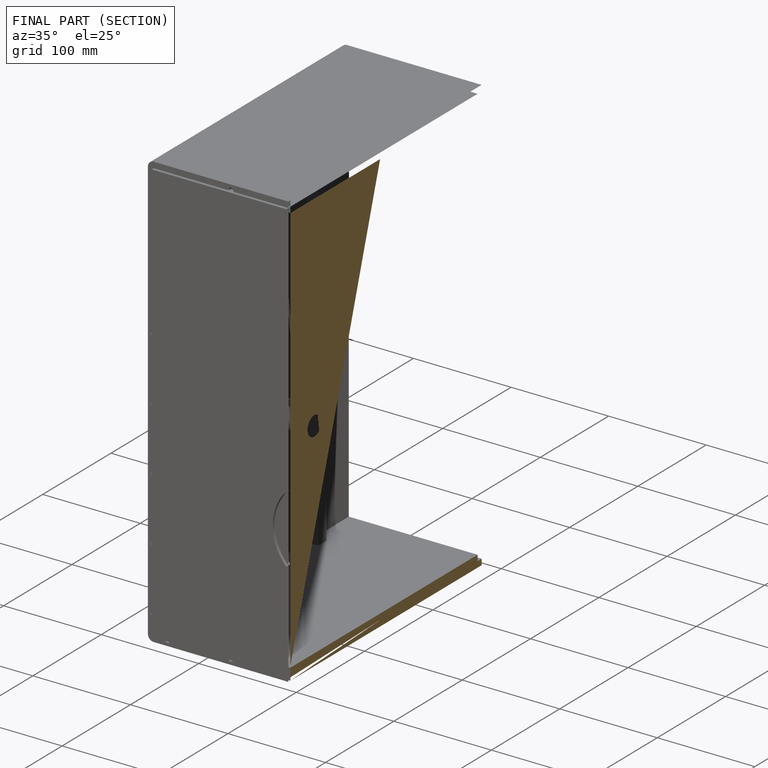
[diagram: finished part — half-section view (interior)]
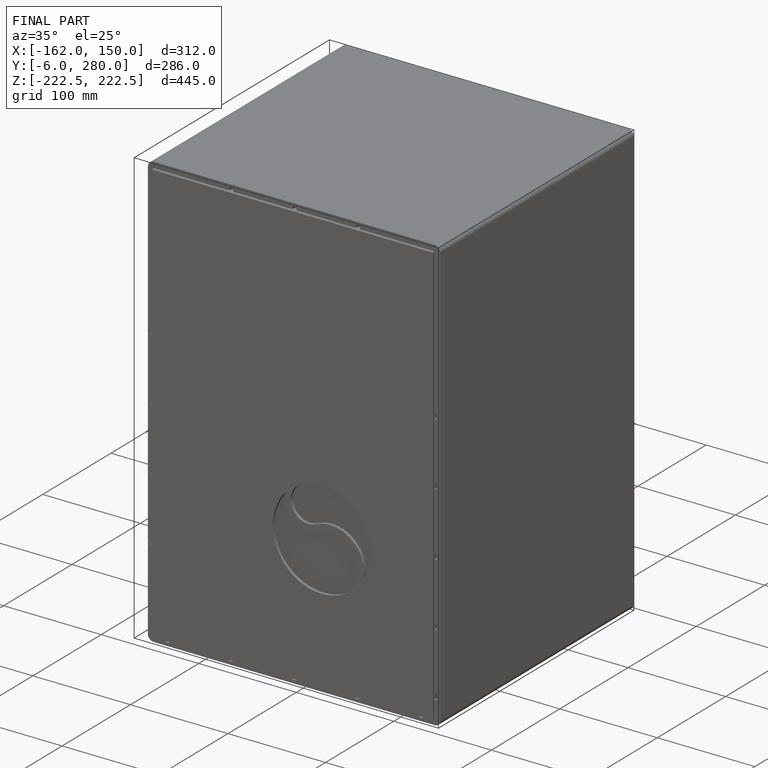
[diagram: finished part — iso view with bounding-box wireframe]
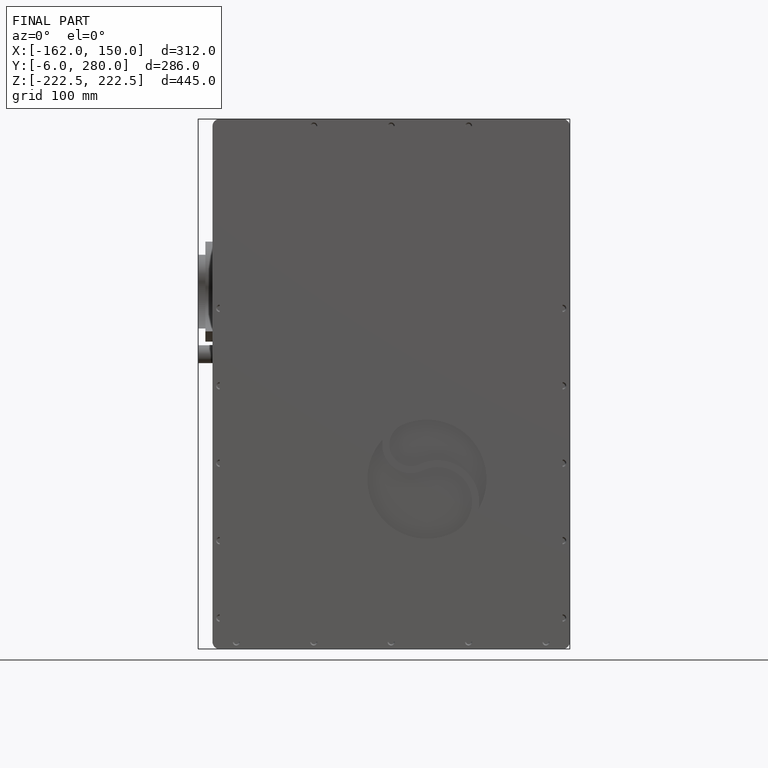
[diagram: finished part — front view with bounding-box wireframe]
